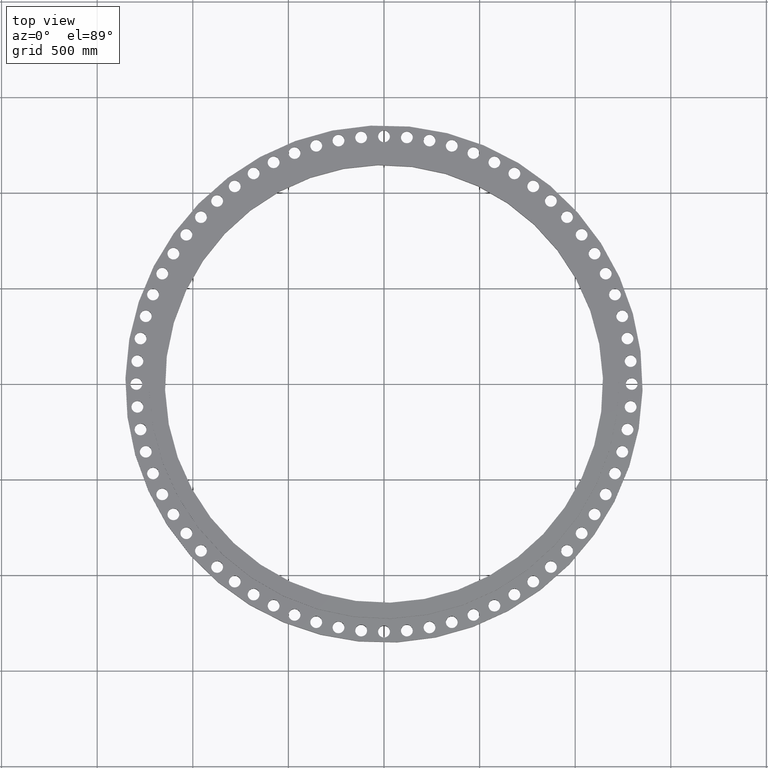
[diagram: clean part render]
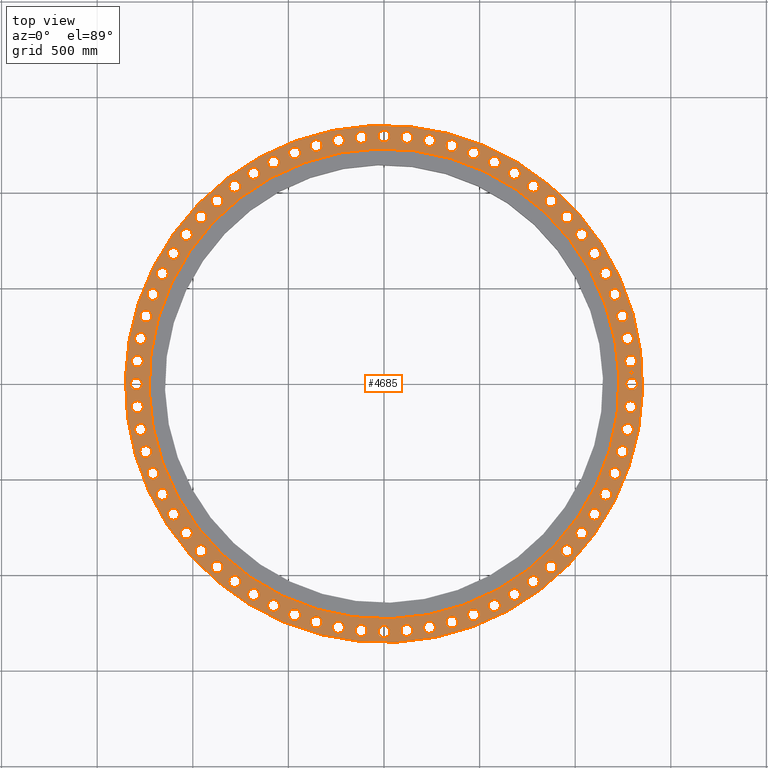
[diagram: same view with one face highlighted and labeled with its STEP entity id]
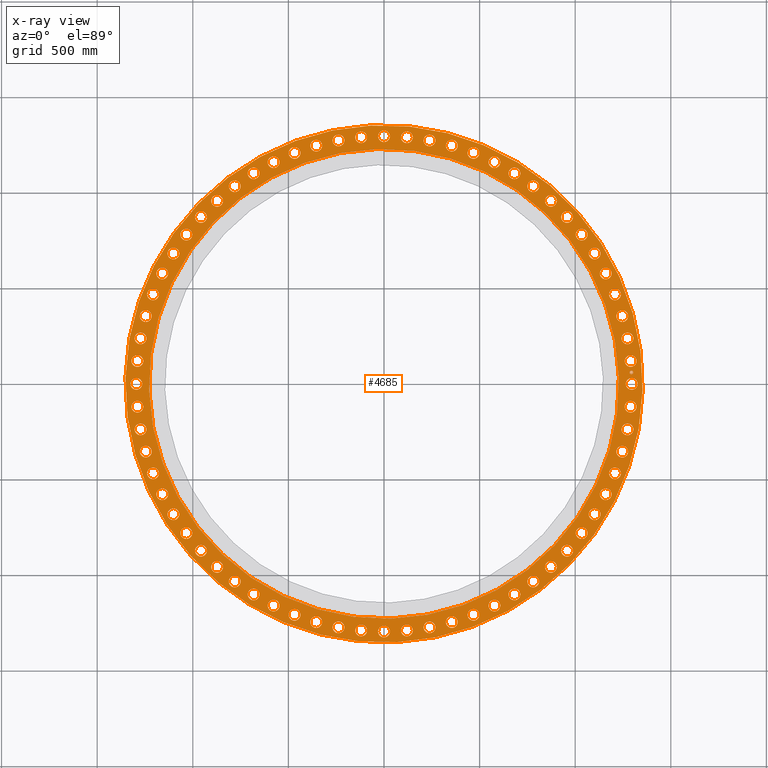
[diagram: x-ray of the same camera — body ghosted, the highlighted face saturated]
A machine part, top view. The second image highlights one B-rep face of the part: STEP entity #4685.
The next image is the same camera in x-ray: the body ghosted, the highlighted face saturated — about 0% of this face is hidden behind the body in this view.
In plain terms, the highlighted planar face has unit normal (0, 0, 1).
Its self-contained STEP definition (entity closure, byte-faithful):
#65=AXIS2_PLACEMENT_3D('Circle Axis2P3D',#63,#64,$) ;
#82=AXIS2_PLACEMENT_3D('Circle Axis2P3D',#80,#81,$) ;
#108=AXIS2_PLACEMENT_3D('Circle Axis2P3D',#106,#107,$) ;
#134=AXIS2_PLACEMENT_3D('Circle Axis2P3D',#132,#133,$) ;
#255=AXIS2_PLACEMENT_3D('Circle Axis2P3D',#253,#254,$) ;
#267=AXIS2_PLACEMENT_3D('Circle Axis2P3D',#265,#266,$) ;
#1522=AXIS2_PLACEMENT_3D('Circle Axis2P3D',#1520,#1521,$) ;
#1534=AXIS2_PLACEMENT_3D('Circle Axis2P3D',#1532,#1533,$) ;
#1565=AXIS2_PLACEMENT_3D('Circle Axis2P3D',#1563,#1564,$) ;
#1577=AXIS2_PLACEMENT_3D('Circle Axis2P3D',#1575,#1576,$) ;
#1608=AXIS2_PLACEMENT_3D('Circle Axis2P3D',#1606,#1607,$) ;
#1620=AXIS2_PLACEMENT_3D('Circle Axis2P3D',#1618,#1619,$) ;
#1651=AXIS2_PLACEMENT_3D('Circle Axis2P3D',#1649,#1650,$) ;
#1663=AXIS2_PLACEMENT_3D('Circle Axis2P3D',#1661,#1662,$) ;
#1694=AXIS2_PLACEMENT_3D('Circle Axis2P3D',#1692,#1693,$) ;
#1706=AXIS2_PLACEMENT_3D('Circle Axis2P3D',#1704,#1705,$) ;
#1737=AXIS2_PLACEMENT_3D('Circle Axis2P3D',#1735,#1736,$) ;
#1749=AXIS2_PLACEMENT_3D('Circle Axis2P3D',#1747,#1748,$) ;
#1780=AXIS2_PLACEMENT_3D('Circle Axis2P3D',#1778,#1779,$) ;
#1792=AXIS2_PLACEMENT_3D('Circle Axis2P3D',#1790,#1791,$) ;
#1823=AXIS2_PLACEMENT_3D('Circle Axis2P3D',#1821,#1822,$) ;
#1835=AXIS2_PLACEMENT_3D('Circle Axis2P3D',#1833,#1834,$) ;
#1866=AXIS2_PLACEMENT_3D('Circle Axis2P3D',#1864,#1865,$) ;
#1878=AXIS2_PLACEMENT_3D('Circle Axis2P3D',#1876,#1877,$) ;
#1909=AXIS2_PLACEMENT_3D('Circle Axis2P3D',#1907,#1908,$) ;
#1921=AXIS2_PLACEMENT_3D('Circle Axis2P3D',#1919,#1920,$) ;
#1952=AXIS2_PLACEMENT_3D('Circle Axis2P3D',#1950,#1951,$) ;
#1964=AXIS2_PLACEMENT_3D('Circle Axis2P3D',#1962,#1963,$) ;
#1995=AXIS2_PLACEMENT_3D('Circle Axis2P3D',#1993,#1994,$) ;
#2007=AXIS2_PLACEMENT_3D('Circle Axis2P3D',#2005,#2006,$) ;
#2038=AXIS2_PLACEMENT_3D('Circle Axis2P3D',#2036,#2037,$) ;
#2050=AXIS2_PLACEMENT_3D('Circle Axis2P3D',#2048,#2049,$) ;
#2081=AXIS2_PLACEMENT_3D('Circle Axis2P3D',#2079,#2080,$) ;
#2093=AXIS2_PLACEMENT_3D('Circle Axis2P3D',#2091,#2092,$) ;
#2124=AXIS2_PLACEMENT_3D('Circle Axis2P3D',#2122,#2123,$) ;
#2136=AXIS2_PLACEMENT_3D('Circle Axis2P3D',#2134,#2135,$) ;
#2167=AXIS2_PLACEMENT_3D('Circle Axis2P3D',#2165,#2166,$) ;
#2179=AXIS2_PLACEMENT_3D('Circle Axis2P3D',#2177,#2178,$) ;
#2210=AXIS2_PLACEMENT_3D('Circle Axis2P3D',#2208,#2209,$) ;
#2222=AXIS2_PLACEMENT_3D('Circle Axis2P3D',#2220,#2221,$) ;
#2253=AXIS2_PLACEMENT_3D('Circle Axis2P3D',#2251,#2252,$) ;
#2265=AXIS2_PLACEMENT_3D('Circle Axis2P3D',#2263,#2264,$) ;
#2296=AXIS2_PLACEMENT_3D('Circle Axis2P3D',#2294,#2295,$) ;
#2308=AXIS2_PLACEMENT_3D('Circle Axis2P3D',#2306,#2307,$) ;
#2339=AXIS2_PLACEMENT_3D('Circle Axis2P3D',#2337,#2338,$) ;
#2351=AXIS2_PLACEMENT_3D('Circle Axis2P3D',#2349,#2350,$) ;
#2382=AXIS2_PLACEMENT_3D('Circle Axis2P3D',#2380,#2381,$) ;
#2394=AXIS2_PLACEMENT_3D('Circle Axis2P3D',#2392,#2393,$) ;
#2425=AXIS2_PLACEMENT_3D('Circle Axis2P3D',#2423,#2424,$) ;
#2437=AXIS2_PLACEMENT_3D('Circle Axis2P3D',#2435,#2436,$) ;
#2468=AXIS2_PLACEMENT_3D('Circle Axis2P3D',#2466,#2467,$) ;
#2480=AXIS2_PLACEMENT_3D('Circle Axis2P3D',#2478,#2479,$) ;
#2511=AXIS2_PLACEMENT_3D('Circle Axis2P3D',#2509,#2510,$) ;
#2523=AXIS2_PLACEMENT_3D('Circle Axis2P3D',#2521,#2522,$) ;
#2554=AXIS2_PLACEMENT_3D('Circle Axis2P3D',#2552,#2553,$) ;
#2566=AXIS2_PLACEMENT_3D('Circle Axis2P3D',#2564,#2565,$) ;
#2597=AXIS2_PLACEMENT_3D('Circle Axis2P3D',#2595,#2596,$) ;
#2609=AXIS2_PLACEMENT_3D('Circle Axis2P3D',#2607,#2608,$) ;
#2640=AXIS2_PLACEMENT_3D('Circle Axis2P3D',#2638,#2639,$) ;
#2652=AXIS2_PLACEMENT_3D('Circle Axis2P3D',#2650,#2651,$) ;
#2683=AXIS2_PLACEMENT_3D('Circle Axis2P3D',#2681,#2682,$) ;
#2695=AXIS2_PLACEMENT_3D('Circle Axis2P3D',#2693,#2694,$) ;
#2726=AXIS2_PLACEMENT_3D('Circle Axis2P3D',#2724,#2725,$) ;
#2738=AXIS2_PLACEMENT_3D('Circle Axis2P3D',#2736,#2737,$) ;
#2769=AXIS2_PLACEMENT_3D('Circle Axis2P3D',#2767,#2768,$) ;
#2781=AXIS2_PLACEMENT_3D('Circle Axis2P3D',#2779,#2780,$) ;
#2812=AXIS2_PLACEMENT_3D('Circle Axis2P3D',#2810,#2811,$) ;
#2824=AXIS2_PLACEMENT_3D('Circle Axis2P3D',#2822,#2823,$) ;
#2855=AXIS2_PLACEMENT_3D('Circle Axis2P3D',#2853,#2854,$) ;
#2867=AXIS2_PLACEMENT_3D('Circle Axis2P3D',#2865,#2866,$) ;
#2898=AXIS2_PLACEMENT_3D('Circle Axis2P3D',#2896,#2897,$) ;
#2910=AXIS2_PLACEMENT_3D('Circle Axis2P3D',#2908,#2909,$) ;
#2941=AXIS2_PLACEMENT_3D('Circle Axis2P3D',#2939,#2940,$) ;
#2953=AXIS2_PLACEMENT_3D('Circle Axis2P3D',#2951,#2952,$) ;
#2984=AXIS2_PLACEMENT_3D('Circle Axis2P3D',#2982,#2983,$) ;
#2996=AXIS2_PLACEMENT_3D('Circle Axis2P3D',#2994,#2995,$) ;
#3027=AXIS2_PLACEMENT_3D('Circle Axis2P3D',#3025,#3026,$) ;
#3039=AXIS2_PLACEMENT_3D('Circle Axis2P3D',#3037,#3038,$) ;
#3070=AXIS2_PLACEMENT_3D('Circle Axis2P3D',#3068,#3069,$) ;
#3082=AXIS2_PLACEMENT_3D('Circle Axis2P3D',#3080,#3081,$) ;
#3113=AXIS2_PLACEMENT_3D('Circle Axis2P3D',#3111,#3112,$) ;
#3125=AXIS2_PLACEMENT_3D('Circle Axis2P3D',#3123,#3124,$) ;
#3156=AXIS2_PLACEMENT_3D('Circle Axis2P3D',#3154,#3155,$) ;
#3168=AXIS2_PLACEMENT_3D('Circle Axis2P3D',#3166,#3167,$) ;
#3199=AXIS2_PLACEMENT_3D('Circle Axis2P3D',#3197,#3198,$) ;
#3211=AXIS2_PLACEMENT_3D('Circle Axis2P3D',#3209,#3210,$) ;
#3242=AXIS2_PLACEMENT_3D('Circle Axis2P3D',#3240,#3241,$) ;
#3254=AXIS2_PLACEMENT_3D('Circle Axis2P3D',#3252,#3253,$) ;
#3285=AXIS2_PLACEMENT_3D('Circle Axis2P3D',#3283,#3284,$) ;
#3297=AXIS2_PLACEMENT_3D('Circle Axis2P3D',#3295,#3296,$) ;
#3328=AXIS2_PLACEMENT_3D('Circle Axis2P3D',#3326,#3327,$) ;
#3340=AXIS2_PLACEMENT_3D('Circle Axis2P3D',#3338,#3339,$) ;
#3371=AXIS2_PLACEMENT_3D('Circle Axis2P3D',#3369,#3370,$) ;
#3383=AXIS2_PLACEMENT_3D('Circle Axis2P3D',#3381,#3382,$) ;
#3414=AXIS2_PLACEMENT_3D('Circle Axis2P3D',#3412,#3413,$) ;
#3426=AXIS2_PLACEMENT_3D('Circle Axis2P3D',#3424,#3425,$) ;
#3457=AXIS2_PLACEMENT_3D('Circle Axis2P3D',#3455,#3456,$) ;
#3469=AXIS2_PLACEMENT_3D('Circle Axis2P3D',#3467,#3468,$) ;
#3500=AXIS2_PLACEMENT_3D('Circle Axis2P3D',#3498,#3499,$) ;
#3512=AXIS2_PLACEMENT_3D('Circle Axis2P3D',#3510,#3511,$) ;
#3543=AXIS2_PLACEMENT_3D('Circle Axis2P3D',#3541,#3542,$) ;
#3555=AXIS2_PLACEMENT_3D('Circle Axis2P3D',#3553,#3554,$) ;
#3586=AXIS2_PLACEMENT_3D('Circle Axis2P3D',#3584,#3585,$) ;
#3598=AXIS2_PLACEMENT_3D('Circle Axis2P3D',#3596,#3597,$) ;
#3629=AXIS2_PLACEMENT_3D('Circle Axis2P3D',#3627,#3628,$) ;
#3641=AXIS2_PLACEMENT_3D('Circle Axis2P3D',#3639,#3640,$) ;
#3672=AXIS2_PLACEMENT_3D('Circle Axis2P3D',#3670,#3671,$) ;
#3684=AXIS2_PLACEMENT_3D('Circle Axis2P3D',#3682,#3683,$) ;
#3715=AXIS2_PLACEMENT_3D('Circle Axis2P3D',#3713,#3714,$) ;
#3727=AXIS2_PLACEMENT_3D('Circle Axis2P3D',#3725,#3726,$) ;
#3758=AXIS2_PLACEMENT_3D('Circle Axis2P3D',#3756,#3757,$) ;
#3770=AXIS2_PLACEMENT_3D('Circle Axis2P3D',#3768,#3769,$) ;
#3801=AXIS2_PLACEMENT_3D('Circle Axis2P3D',#3799,#3800,$) ;
#3813=AXIS2_PLACEMENT_3D('Circle Axis2P3D',#3811,#3812,$) ;
#3844=AXIS2_PLACEMENT_3D('Circle Axis2P3D',#3842,#3843,$) ;
#3856=AXIS2_PLACEMENT_3D('Circle Axis2P3D',#3854,#3855,$) ;
#3887=AXIS2_PLACEMENT_3D('Circle Axis2P3D',#3885,#3886,$) ;
#3899=AXIS2_PLACEMENT_3D('Circle Axis2P3D',#3897,#3898,$) ;
#3930=AXIS2_PLACEMENT_3D('Circle Axis2P3D',#3928,#3929,$) ;
#3942=AXIS2_PLACEMENT_3D('Circle Axis2P3D',#3940,#3941,$) ;
#3973=AXIS2_PLACEMENT_3D('Circle Axis2P3D',#3971,#3972,$) ;
#3985=AXIS2_PLACEMENT_3D('Circle Axis2P3D',#3983,#3984,$) ;
#4016=AXIS2_PLACEMENT_3D('Circle Axis2P3D',#4014,#4015,$) ;
#4028=AXIS2_PLACEMENT_3D('Circle Axis2P3D',#4026,#4027,$) ;
#4059=AXIS2_PLACEMENT_3D('Circle Axis2P3D',#4057,#4058,$) ;
#4071=AXIS2_PLACEMENT_3D('Circle Axis2P3D',#4069,#4070,$) ;
#4102=AXIS2_PLACEMENT_3D('Circle Axis2P3D',#4100,#4101,$) ;
#4114=AXIS2_PLACEMENT_3D('Circle Axis2P3D',#4112,#4113,$) ;
#4145=AXIS2_PLACEMENT_3D('Circle Axis2P3D',#4143,#4144,$) ;
#4157=AXIS2_PLACEMENT_3D('Circle Axis2P3D',#4155,#4156,$) ;
#4188=AXIS2_PLACEMENT_3D('Circle Axis2P3D',#4186,#4187,$) ;
#4200=AXIS2_PLACEMENT_3D('Circle Axis2P3D',#4198,#4199,$) ;
#4231=AXIS2_PLACEMENT_3D('Circle Axis2P3D',#4229,#4230,$) ;
#4243=AXIS2_PLACEMENT_3D('Circle Axis2P3D',#4241,#4242,$) ;
#4274=AXIS2_PLACEMENT_3D('Circle Axis2P3D',#4272,#4273,$) ;
#4286=AXIS2_PLACEMENT_3D('Circle Axis2P3D',#4284,#4285,$) ;
#4317=AXIS2_PLACEMENT_3D('Circle Axis2P3D',#4315,#4316,$) ;
#4329=AXIS2_PLACEMENT_3D('Circle Axis2P3D',#4327,#4328,$) ;
#4360=AXIS2_PLACEMENT_3D('Circle Axis2P3D',#4358,#4359,$) ;
#4372=AXIS2_PLACEMENT_3D('Circle Axis2P3D',#4370,#4371,$) ;
#4385=AXIS2_PLACEMENT_3D('Plane Axis2P3D',#4382,#4383,#4384) ;
#4669=AXIS2_PLACEMENT_3D('Circle Axis2P3D',#4667,#4668,$) ;
#4678=AXIS2_PLACEMENT_3D('Circle Axis2P3D',#4676,#4677,$) ;
#46=CARTESIAN_POINT('Vertex',(49.9302268573,0.584419731561,4.25000000002)) ;
#60=CARTESIAN_POINT('Vertex',(52.0697731432,-0.584419731561,4.25000000002)) ;
#63=CARTESIAN_POINT('Axis2P3D Location',(51.0000000002,0.,4.25000000002)) ;
#80=CARTESIAN_POINT('Axis2P3D Location',(51.0000000002,0.,4.25000000002)) ;
#103=CARTESIAN_POINT('Vertex',(-25.5294099308,46.7312714208,4.25000000002)) ;
#106=CARTESIAN_POINT('Axis2P3D Location',(0.,0.,4.25000000002)) ;
#110=CARTESIAN_POINT('Vertex',(25.5294099308,-46.7312714208,4.25000000002)) ;
#132=CARTESIAN_POINT('Axis2P3D Location',(0.,0.,4.25000000002)) ;
#243=CARTESIAN_POINT('Vertex',(-23.1922104301,42.4530564316,4.25000000002)) ;
#250=CARTESIAN_POINT('Vertex',(23.1922104301,-42.4530564316,4.25000000002)) ;
#253=CARTESIAN_POINT('Axis2P3D Location',(0.,0.,4.25000000002)) ;
#265=CARTESIAN_POINT('Axis2P3D Location',(0.,0.,4.25000000002)) ;
#1510=CARTESIAN_POINT('Vertex',(49.6633098621,5.18890681977,4.25000000002)) ;
#1517=CARTESIAN_POINT('Vertex',(51.9015761204,4.22246584553,4.25000000002)) ;
#1520=CARTESIAN_POINT('Axis2P3D Location',(50.7824429912,4.70568633265,4.25000000002)) ;
#1532=CARTESIAN_POINT('Axis2P3D Location',(50.7824429912,4.70568633265,4.25000000002)) ;
#1553=CARTESIAN_POINT('Vertex',(48.9726830179,9.74912398454,4.25000000002)) ;
#1560=CARTESIAN_POINT('Vertex',(51.2905731502,8.99332683282,4.25000000002)) ;
#1563=CARTESIAN_POINT('Axis2P3D Location',(50.1316280841,9.37122540868,4.25000000002)) ;
#1575=CARTESIAN_POINT('Axis2P3D Location',(50.1316280841,9.37122540868,4.25000000002)) ;
#1596=CARTESIAN_POINT('Vertex',(47.8642385095,14.2261650609,4.25000000002)) ;
#1603=CARTESIAN_POINT('Vertex',(50.2419770945,13.6874599265,4.25000000002)) ;
#1606=CARTESIAN_POINT('Axis2P3D Location',(49.053107802,13.9568124937,4.25000000002)) ;
#1618=CARTESIAN_POINT('Axis2P3D Location',(49.053107802,13.9568124937,4.25000000002)) ;
#1639=CARTESIAN_POINT('Vertex',(46.3474331947,18.581833513,4.25000000002)) ;
#1646=CARTESIAN_POINT('Vertex',(48.764734205,18.2648164382,4.25000000002)) ;
#1649=CARTESIAN_POINT('Axis2P3D Location',(47.5560836998,18.4233249756,4.25000000002)) ;
#1661=CARTESIAN_POINT('Axis2P3D Location',(47.5560836998,18.4233249756,4.25000000002)) ;
#1682=CARTESIAN_POINT('Vertex',(44.4352079214,22.7789683133,4.25000000002)) ;
#1689=CARTESIAN_POINT('Vertex',(46.8714477972,22.686343976,4.25000000002)) ;
#1692=CARTESIAN_POINT('Axis2P3D Location',(45.6533278593,22.7326561447,4.25000000002)) ;
#1704=CARTESIAN_POINT('Axis2P3D Location',(45.6533278593,22.7326561447,4.25000000002)) ;
#1725=CARTESIAN_POINT('Vertex',(42.1438771216,26.7817609877,4.25000000002)) ;
#1732=CARTESIAN_POINT('Vertex',(44.5782707232,26.9143196261,4.25000000002)) ;
#1735=CARTESIAN_POINT('Axis2P3D Location',(43.3610739224,26.8480403069,4.25000000002)) ;
#1747=CARTESIAN_POINT('Axis2P3D Location',(43.3610739224,26.8480403069,4.25000000002)) ;
#1768=CARTESIAN_POINT('Vertex',(39.4929896217,30.5560611202,4.25000000002)) ;
#1775=CARTESIAN_POINT('Vertex',(41.9047675612,30.9126717907,4.25000000002)) ;
#1778=CARTESIAN_POINT('Axis2P3D Location',(40.6988785915,30.7343664555,4.25000000002)) ;
#1790=CARTESIAN_POINT('Axis2P3D Location',(40.6988785915,30.7343664555,4.25000000002)) ;
#1811=CARTESIAN_POINT('Vertex',(36.5051618591,34.069667713,4.25000000002)) ;
#1818=CARTESIAN_POINT('Vertex',(38.8737476977,34.6472879392,4.25000000002)) ;
#1821=CARTESIAN_POINT('Axis2P3D Location',(37.6894547784,34.3584778261,4.25000000002)) ;
#1833=CARTESIAN_POINT('Axis2P3D Location',(37.6894547784,34.3584778261,4.25000000002)) ;
#1854=CARTESIAN_POINT('Vertex',(33.205884927,37.2926039136,4.25000000002)) ;
#1861=CARTESIAN_POINT('Vertex',(35.5110707252,38.0863056432,4.25000000002)) ;
#1864=CARTESIAN_POINT('Axis2P3D Location',(34.3584778261,37.6894547784,4.25000000002)) ;
#1876=CARTESIAN_POINT('Axis2P3D Location',(34.3584778261,37.6894547784,4.25000000002)) ;
#1897=CARTESIAN_POINT('Vertex',(29.6233070927,40.1973727665,4.25000000002)) ;
#1904=CARTESIAN_POINT('Vertex',(31.8454258182,41.2003844164,4.25000000002)) ;
#1907=CARTESIAN_POINT('Axis2P3D Location',(30.7343664555,40.6988785915,4.25000000002)) ;
#1919=CARTESIAN_POINT('Axis2P3D Location',(30.7343664555,40.6988785915,4.25000000002)) ;
#1940=CARTESIAN_POINT('Vertex',(25.7879936472,42.7591918082,4.25000000002)) ;
#1947=CARTESIAN_POINT('Vertex',(27.9080869665,43.9629560365,4.25000000002)) ;
#1950=CARTESIAN_POINT('Axis2P3D Location',(26.8480403069,43.3610739224,4.25000000002)) ;
#1962=CARTESIAN_POINT('Axis2P3D Location',(26.8480403069,43.3610739224,4.25000000002)) ;
#1983=CARTESIAN_POINT('Vertex',(21.7326661325,44.9562045019,4.25000000002)) ;
#1990=CARTESIAN_POINT('Vertex',(23.7326461569,46.3504512167,4.25000000002)) ;
#1993=CARTESIAN_POINT('Axis2P3D Location',(22.7326561447,45.6533278593,4.25000000002)) ;
#2005=CARTESIAN_POINT('Axis2P3D Location',(22.7326561447,45.6533278593,4.25000000002)) ;
#2026=CARTESIAN_POINT('Vertex',(17.491923173,46.7696667098,4.25000000002)) ;
#2033=CARTESIAN_POINT('Vertex',(19.3547267782,48.3425006898,4.25000000002)) ;
#2036=CARTESIAN_POINT('Axis2P3D Location',(18.4233249756,47.5560836998,4.25000000002)) ;
#2048=CARTESIAN_POINT('Axis2P3D Location',(18.4233249756,47.5560836998,4.25000000002)) ;
#2069=CARTESIAN_POINT('Vertex',(13.1019452925,48.1841066119,4.25000000002)) ;
#2076=CARTESIAN_POINT('Vertex',(14.8116796949,49.9221089921,4.25000000002)) ;
#2079=CARTESIAN_POINT('Axis2P3D Location',(13.9568124937,49.053107802,4.25000000002)) ;
#2091=CARTESIAN_POINT('Axis2P3D Location',(13.9568124937,49.053107802,4.25000000002)) ;
#2112=CARTESIAN_POINT('Vertex',(8.60018623444,49.1874567057,4.25000000002)) ;
#2119=CARTESIAN_POINT('Vertex',(10.1422645829,51.0757994625,4.25000000002)) ;
#2122=CARTESIAN_POINT('Axis2P3D Location',(9.37122540868,50.1316280841,4.25000000002)) ;
#2134=CARTESIAN_POINT('Axis2P3D Location',(9.37122540868,50.1316280841,4.25000000002)) ;
#2155=CARTESIAN_POINT('Vertex',(4.02505341973,49.7711567618,4.25000000002)) ;
#2162=CARTESIAN_POINT('Vertex',(5.38631924556,51.7937292207,4.25000000002)) ;
#2165=CARTESIAN_POINT('Axis2P3D Location',(4.70568633265,50.7824429912,4.25000000002)) ;
#2177=CARTESIAN_POINT('Axis2P3D Location',(4.70568633265,50.7824429912,4.25000000002)) ;
#2198=CARTESIAN_POINT('Vertex',(-0.584419731561,49.9302268573,4.25000000002)) ;
#2205=CARTESIAN_POINT('Vertex',(0.584419731561,52.0697731432,4.25000000002)) ;
#2208=CARTESIAN_POINT('Axis2P3D Location',(-5.8288701678E-015,51.0000000002,4.25000000002)) ;
#2220=CARTESIAN_POINT('Axis2P3D Location',(-5.8288701678E-015,51.0000000002,4.25000000002)) ;
#2241=CARTESIAN_POINT('Vertex',(-5.18890681977,49.6633098621,4.25000000002)) ;
#2248=CARTESIAN_POINT('Vertex',(-4.22246584553,51.9015761204,4.25000000002)) ;
#2251=CARTESIAN_POINT('Axis2P3D Location',(-4.70568633265,50.7824429912,4.25000000002)) ;
#2263=CARTESIAN_POINT('Axis2P3D Location',(-4.70568633265,50.7824429912,4.25000000002)) ;
#2284=CARTESIAN_POINT('Vertex',(-9.74912398454,48.9726830179,4.25000000002)) ;
#2291=CARTESIAN_POINT('Vertex',(-8.99332683282,51.2905731502,4.25000000002)) ;
#2294=CARTESIAN_POINT('Axis2P3D Location',(-9.37122540868,50.1316280841,4.25000000002)) ;
#2306=CARTESIAN_POINT('Axis2P3D Location',(-9.37122540868,50.1316280841,4.25000000002)) ;
#2327=CARTESIAN_POINT('Vertex',(-14.2261650609,47.8642385095,4.25000000002)) ;
#2334=CARTESIAN_POINT('Vertex',(-13.6874599265,50.2419770945,4.25000000002)) ;
#2337=CARTESIAN_POINT('Axis2P3D Location',(-13.9568124937,49.053107802,4.25000000002)) ;
#2349=CARTESIAN_POINT('Axis2P3D Location',(-13.9568124937,49.053107802,4.25000000002)) ;
#2370=CARTESIAN_POINT('Vertex',(-18.581833513,46.3474331947,4.25000000002)) ;
#2377=CARTESIAN_POINT('Vertex',(-18.2648164382,48.764734205,4.25000000002)) ;
#2380=CARTESIAN_POINT('Axis2P3D Location',(-18.4233249756,47.5560836998,4.25000000002)) ;
#2392=CARTESIAN_POINT('Axis2P3D Location',(-18.4233249756,47.5560836998,4.25000000002)) ;
#2413=CARTESIAN_POINT('Vertex',(-22.7789683133,44.4352079214,4.25000000002)) ;
#2420=CARTESIAN_POINT('Vertex',(-22.686343976,46.8714477972,4.25000000002)) ;
#2423=CARTESIAN_POINT('Axis2P3D Location',(-22.7326561447,45.6533278593,4.25000000002)) ;
#2435=CARTESIAN_POINT('Axis2P3D Location',(-22.7326561447,45.6533278593,4.25000000002)) ;
#2456=CARTESIAN_POINT('Vertex',(-26.7817609877,42.1438771216,4.25000000002)) ;
#2463=CARTESIAN_POINT('Vertex',(-26.9143196261,44.5782707232,4.25000000002)) ;
#2466=CARTESIAN_POINT('Axis2P3D Location',(-26.8480403069,43.3610739224,4.25000000002)) ;
#2478=CARTESIAN_POINT('Axis2P3D Location',(-26.8480403069,43.3610739224,4.25000000002)) ;
#2499=CARTESIAN_POINT('Vertex',(-30.5560611202,39.4929896217,4.25000000002)) ;
#2506=CARTESIAN_POINT('Vertex',(-30.9126717907,41.9047675612,4.25000000002)) ;
#2509=CARTESIAN_POINT('Axis2P3D Location',(-30.7343664555,40.6988785915,4.25000000002)) ;
#2521=CARTESIAN_POINT('Axis2P3D Location',(-30.7343664555,40.6988785915,4.25000000002)) ;
#2542=CARTESIAN_POINT('Vertex',(-34.069667713,36.5051618591,4.25000000002)) ;
#2549=CARTESIAN_POINT('Vertex',(-34.6472879392,38.8737476977,4.25000000002)) ;
#2552=CARTESIAN_POINT('Axis2P3D Location',(-34.3584778261,37.6894547784,4.25000000002)) ;
#2564=CARTESIAN_POINT('Axis2P3D Location',(-34.3584778261,37.6894547784,4.25000000002)) ;
#2585=CARTESIAN_POINT('Vertex',(-37.2926039136,33.205884927,4.25000000002)) ;
#2592=CARTESIAN_POINT('Vertex',(-38.0863056432,35.5110707252,4.25000000002)) ;
#2595=CARTESIAN_POINT('Axis2P3D Location',(-37.6894547784,34.3584778261,4.25000000002)) ;
#2607=CARTESIAN_POINT('Axis2P3D Location',(-37.6894547784,34.3584778261,4.25000000002)) ;
#2628=CARTESIAN_POINT('Vertex',(-40.1973727665,29.6233070927,4.25000000002)) ;
#2635=CARTESIAN_POINT('Vertex',(-41.2003844164,31.8454258182,4.25000000002)) ;
#2638=CARTESIAN_POINT('Axis2P3D Location',(-40.6988785915,30.7343664555,4.25000000002)) ;
#2650=CARTESIAN_POINT('Axis2P3D Location',(-40.6988785915,30.7343664555,4.25000000002)) ;
#2671=CARTESIAN_POINT('Vertex',(-42.7591918082,25.7879936472,4.25000000002)) ;
#2678=CARTESIAN_POINT('Vertex',(-43.9629560365,27.9080869665,4.25000000002)) ;
#2681=CARTESIAN_POINT('Axis2P3D Location',(-43.3610739224,26.8480403069,4.25000000002)) ;
#2693=CARTESIAN_POINT('Axis2P3D Location',(-43.3610739224,26.8480403069,4.25000000002)) ;
#2714=CARTESIAN_POINT('Vertex',(-44.9562045019,21.7326661325,4.25000000002)) ;
#2721=CARTESIAN_POINT('Vertex',(-46.3504512167,23.7326461569,4.25000000002)) ;
#2724=CARTESIAN_POINT('Axis2P3D Location',(-45.6533278593,22.7326561447,4.25000000002)) ;
#2736=CARTESIAN_POINT('Axis2P3D Location',(-45.6533278593,22.7326561447,4.25000000002)) ;
#2757=CARTESIAN_POINT('Vertex',(-46.7696667098,17.491923173,4.25000000002)) ;
#2764=CARTESIAN_POINT('Vertex',(-48.3425006898,19.3547267782,4.25000000002)) ;
#2767=CARTESIAN_POINT('Axis2P3D Location',(-47.5560836998,18.4233249756,4.25000000002)) ;
#2779=CARTESIAN_POINT('Axis2P3D Location',(-47.5560836998,18.4233249756,4.25000000002)) ;
#2800=CARTESIAN_POINT('Vertex',(-48.1841066119,13.1019452925,4.25000000002)) ;
#2807=CARTESIAN_POINT('Vertex',(-49.9221089921,14.8116796949,4.25000000002)) ;
#2810=CARTESIAN_POINT('Axis2P3D Location',(-49.053107802,13.9568124937,4.25000000002)) ;
#2822=CARTESIAN_POINT('Axis2P3D Location',(-49.053107802,13.9568124937,4.25000000002)) ;
#2843=CARTESIAN_POINT('Vertex',(-49.1874567057,8.60018623444,4.25000000002)) ;
#2850=CARTESIAN_POINT('Vertex',(-51.0757994625,10.1422645829,4.25000000002)) ;
#2853=CARTESIAN_POINT('Axis2P3D Location',(-50.1316280841,9.37122540868,4.25000000002)) ;
#2865=CARTESIAN_POINT('Axis2P3D Location',(-50.1316280841,9.37122540868,4.25000000002)) ;
#2886=CARTESIAN_POINT('Vertex',(-49.7711567618,4.02505341973,4.25000000002)) ;
#2893=CARTESIAN_POINT('Vertex',(-51.7937292207,5.38631924556,4.25000000002)) ;
#2896=CARTESIAN_POINT('Axis2P3D Location',(-50.7824429912,4.70568633265,4.25000000002)) ;
#2908=CARTESIAN_POINT('Axis2P3D Location',(-50.7824429912,4.70568633265,4.25000000002)) ;
#2929=CARTESIAN_POINT('Vertex',(-49.9302268573,-0.584419731561,4.25000000002)) ;
#2936=CARTESIAN_POINT('Vertex',(-52.0697731432,0.584419731561,4.25000000002)) ;
#2939=CARTESIAN_POINT('Axis2P3D Location',(-51.0000000002,6.24569867568E-015,4.25000000002)) ;
#2951=CARTESIAN_POINT('Axis2P3D Location',(-51.0000000002,6.24569867568E-015,4.25000000002)) ;
#2972=CARTESIAN_POINT('Vertex',(-49.6633098621,-5.18890681977,4.25000000002)) ;
#2979=CARTESIAN_POINT('Vertex',(-51.9015761204,-4.22246584553,4.25000000002)) ;
#2982=CARTESIAN_POINT('Axis2P3D Location',(-50.7824429912,-4.70568633265,4.25000000002)) ;
#2994=CARTESIAN_POINT('Axis2P3D Location',(-50.7824429912,-4.70568633265,4.25000000002)) ;
#3015=CARTESIAN_POINT('Vertex',(-48.9726830179,-9.74912398454,4.25000000002)) ;
#3022=CARTESIAN_POINT('Vertex',(-51.2905731502,-8.99332683282,4.25000000002)) ;
#3025=CARTESIAN_POINT('Axis2P3D Location',(-50.1316280841,-9.37122540868,4.25000000002)) ;
#3037=CARTESIAN_POINT('Axis2P3D Location',(-50.1316280841,-9.37122540868,4.25000000002)) ;
#3058=CARTESIAN_POINT('Vertex',(-47.8642385095,-14.2261650609,4.25000000002)) ;
#3065=CARTESIAN_POINT('Vertex',(-50.2419770945,-13.6874599265,4.25000000002)) ;
#3068=CARTESIAN_POINT('Axis2P3D Location',(-49.053107802,-13.9568124937,4.25000000002)) ;
#3080=CARTESIAN_POINT('Axis2P3D Location',(-49.053107802,-13.9568124937,4.25000000002)) ;
#3101=CARTESIAN_POINT('Vertex',(-46.3474331947,-18.581833513,4.25000000002)) ;
#3108=CARTESIAN_POINT('Vertex',(-48.764734205,-18.2648164382,4.25000000002)) ;
#3111=CARTESIAN_POINT('Axis2P3D Location',(-47.5560836998,-18.4233249756,4.25000000002)) ;
#3123=CARTESIAN_POINT('Axis2P3D Location',(-47.5560836998,-18.4233249756,4.25000000002)) ;
#3144=CARTESIAN_POINT('Vertex',(-44.4352079214,-22.7789683133,4.25000000002)) ;
#3151=CARTESIAN_POINT('Vertex',(-46.8714477972,-22.686343976,4.25000000002)) ;
#3154=CARTESIAN_POINT('Axis2P3D Location',(-45.6533278593,-22.7326561447,4.25000000002)) ;
#3166=CARTESIAN_POINT('Axis2P3D Location',(-45.6533278593,-22.7326561447,4.25000000002)) ;
#3187=CARTESIAN_POINT('Vertex',(-42.1438771216,-26.7817609877,4.25000000002)) ;
#3194=CARTESIAN_POINT('Vertex',(-44.5782707232,-26.9143196261,4.25000000002)) ;
#3197=CARTESIAN_POINT('Axis2P3D Location',(-43.3610739224,-26.8480403069,4.25000000002)) ;
#3209=CARTESIAN_POINT('Axis2P3D Location',(-43.3610739224,-26.8480403069,4.25000000002)) ;
#3230=CARTESIAN_POINT('Vertex',(-39.4929896217,-30.5560611202,4.25000000002)) ;
#3237=CARTESIAN_POINT('Vertex',(-41.9047675612,-30.9126717907,4.25000000002)) ;
#3240=CARTESIAN_POINT('Axis2P3D Location',(-40.6988785915,-30.7343664555,4.25000000002)) ;
#3252=CARTESIAN_POINT('Axis2P3D Location',(-40.6988785915,-30.7343664555,4.25000000002)) ;
#3273=CARTESIAN_POINT('Vertex',(-36.5051618591,-34.069667713,4.25000000002)) ;
#3280=CARTESIAN_POINT('Vertex',(-38.8737476977,-34.6472879392,4.25000000002)) ;
#3283=CARTESIAN_POINT('Axis2P3D Location',(-37.6894547784,-34.3584778261,4.25000000002)) ;
#3295=CARTESIAN_POINT('Axis2P3D Location',(-37.6894547784,-34.3584778261,4.25000000002)) ;
#3316=CARTESIAN_POINT('Vertex',(-33.205884927,-37.2926039136,4.25000000002)) ;
#3323=CARTESIAN_POINT('Vertex',(-35.5110707252,-38.0863056432,4.25000000002)) ;
#3326=CARTESIAN_POINT('Axis2P3D Location',(-34.3584778261,-37.6894547784,4.25000000002)) ;
#3338=CARTESIAN_POINT('Axis2P3D Location',(-34.3584778261,-37.6894547784,4.25000000002)) ;
#3359=CARTESIAN_POINT('Vertex',(-29.6233070927,-40.1973727665,4.25000000002)) ;
#3366=CARTESIAN_POINT('Vertex',(-31.8454258182,-41.2003844164,4.25000000002)) ;
#3369=CARTESIAN_POINT('Axis2P3D Location',(-30.7343664555,-40.6988785915,4.25000000002)) ;
#3381=CARTESIAN_POINT('Axis2P3D Location',(-30.7343664555,-40.6988785915,4.25000000002)) ;
#3402=CARTESIAN_POINT('Vertex',(-25.7879936472,-42.7591918082,4.25000000002)) ;
#3409=CARTESIAN_POINT('Vertex',(-27.9080869665,-43.9629560365,4.25000000002)) ;
#3412=CARTESIAN_POINT('Axis2P3D Location',(-26.8480403069,-43.3610739224,4.25000000002)) ;
#3424=CARTESIAN_POINT('Axis2P3D Location',(-26.8480403069,-43.3610739224,4.25000000002)) ;
#3445=CARTESIAN_POINT('Vertex',(-21.7326661325,-44.9562045019,4.25000000002)) ;
#3452=CARTESIAN_POINT('Vertex',(-23.7326461569,-46.3504512167,4.25000000002)) ;
#3455=CARTESIAN_POINT('Axis2P3D Location',(-22.7326561447,-45.6533278593,4.25000000002)) ;
#3467=CARTESIAN_POINT('Axis2P3D Location',(-22.7326561447,-45.6533278593,4.25000000002)) ;
#3488=CARTESIAN_POINT('Vertex',(-17.491923173,-46.7696667098,4.25000000002)) ;
#3495=CARTESIAN_POINT('Vertex',(-19.3547267782,-48.3425006898,4.25000000002)) ;
#3498=CARTESIAN_POINT('Axis2P3D Location',(-18.4233249756,-47.5560836998,4.25000000002)) ;
#3510=CARTESIAN_POINT('Axis2P3D Location',(-18.4233249756,-47.5560836998,4.25000000002)) ;
#3531=CARTESIAN_POINT('Vertex',(-13.1019452925,-48.1841066119,4.25000000002)) ;
#3538=CARTESIAN_POINT('Vertex',(-14.8116796949,-49.9221089921,4.25000000002)) ;
#3541=CARTESIAN_POINT('Axis2P3D Location',(-13.9568124937,-49.053107802,4.25000000002)) ;
#3553=CARTESIAN_POINT('Axis2P3D Location',(-13.9568124937,-49.053107802,4.25000000002)) ;
#3574=CARTESIAN_POINT('Vertex',(-8.60018623444,-49.1874567057,4.25000000002)) ;
#3581=CARTESIAN_POINT('Vertex',(-10.1422645829,-51.0757994625,4.25000000002)) ;
#3584=CARTESIAN_POINT('Axis2P3D Location',(-9.37122540868,-50.1316280841,4.25000000002)) ;
#3596=CARTESIAN_POINT('Axis2P3D Location',(-9.37122540868,-50.1316280841,4.25000000002)) ;
#3617=CARTESIAN_POINT('Vertex',(-4.02505341973,-49.7711567618,4.25000000002)) ;
#3624=CARTESIAN_POINT('Vertex',(-5.38631924556,-51.7937292207,4.25000000002)) ;
#3627=CARTESIAN_POINT('Axis2P3D Location',(-4.70568633265,-50.7824429912,4.25000000002)) ;
#3639=CARTESIAN_POINT('Axis2P3D Location',(-4.70568633265,-50.7824429912,4.25000000002)) ;
#3660=CARTESIAN_POINT('Vertex',(0.584419731561,-49.9302268573,4.25000000002)) ;
#3667=CARTESIAN_POINT('Vertex',(-0.584419731561,-52.0697731432,4.25000000002)) ;
#3670=CARTESIAN_POINT('Axis2P3D Location',(-9.36854801351E-015,-51.0000000002,4.25000000002)) ;
#3682=CARTESIAN_POINT('Axis2P3D Location',(-9.36854801351E-015,-51.0000000002,4.25000000002)) ;
#3703=CARTESIAN_POINT('Vertex',(5.18890681977,-49.6633098621,4.25000000002)) ;
#3710=CARTESIAN_POINT('Vertex',(4.22246584553,-51.9015761204,4.25000000002)) ;
#3713=CARTESIAN_POINT('Axis2P3D Location',(4.70568633265,-50.7824429912,4.25000000002)) ;
#3725=CARTESIAN_POINT('Axis2P3D Location',(4.70568633265,-50.7824429912,4.25000000002)) ;
#3746=CARTESIAN_POINT('Vertex',(9.74912398454,-48.9726830179,4.25000000002)) ;
#3753=CARTESIAN_POINT('Vertex',(8.99332683282,-51.2905731502,4.25000000002)) ;
#3756=CARTESIAN_POINT('Axis2P3D Location',(9.37122540868,-50.1316280841,4.25000000002)) ;
#3768=CARTESIAN_POINT('Axis2P3D Location',(9.37122540868,-50.1316280841,4.25000000002)) ;
#3789=CARTESIAN_POINT('Vertex',(14.2261650609,-47.8642385095,4.25000000002)) ;
#3796=CARTESIAN_POINT('Vertex',(13.6874599265,-50.2419770945,4.25000000002)) ;
#3799=CARTESIAN_POINT('Axis2P3D Location',(13.9568124937,-49.053107802,4.25000000002)) ;
#3811=CARTESIAN_POINT('Axis2P3D Location',(13.9568124937,-49.053107802,4.25000000002)) ;
#3832=CARTESIAN_POINT('Vertex',(18.581833513,-46.3474331947,4.25000000002)) ;
#3839=CARTESIAN_POINT('Vertex',(18.2648164382,-48.764734205,4.25000000002)) ;
#3842=CARTESIAN_POINT('Axis2P3D Location',(18.4233249756,-47.5560836998,4.25000000002)) ;
#3854=CARTESIAN_POINT('Axis2P3D Location',(18.4233249756,-47.5560836998,4.25000000002)) ;
#3875=CARTESIAN_POINT('Vertex',(22.7789683133,-44.4352079214,4.25000000002)) ;
#3882=CARTESIAN_POINT('Vertex',(22.686343976,-46.8714477972,4.25000000002)) ;
#3885=CARTESIAN_POINT('Axis2P3D Location',(22.7326561447,-45.6533278593,4.25000000002)) ;
#3897=CARTESIAN_POINT('Axis2P3D Location',(22.7326561447,-45.6533278593,4.25000000002)) ;
#3918=CARTESIAN_POINT('Vertex',(26.7817609877,-42.1438771216,4.25000000002)) ;
#3925=CARTESIAN_POINT('Vertex',(26.9143196261,-44.5782707232,4.25000000002)) ;
#3928=CARTESIAN_POINT('Axis2P3D Location',(26.8480403069,-43.3610739224,4.25000000002)) ;
#3940=CARTESIAN_POINT('Axis2P3D Location',(26.8480403069,-43.3610739224,4.25000000002)) ;
#3961=CARTESIAN_POINT('Vertex',(30.5560611202,-39.4929896217,4.25000000002)) ;
#3968=CARTESIAN_POINT('Vertex',(30.9126717907,-41.9047675612,4.25000000002)) ;
#3971=CARTESIAN_POINT('Axis2P3D Location',(30.7343664555,-40.6988785915,4.25000000002)) ;
#3983=CARTESIAN_POINT('Axis2P3D Location',(30.7343664555,-40.6988785915,4.25000000002)) ;
#4004=CARTESIAN_POINT('Vertex',(34.069667713,-36.5051618591,4.25000000002)) ;
#4011=CARTESIAN_POINT('Vertex',(34.6472879392,-38.8737476977,4.25000000002)) ;
#4014=CARTESIAN_POINT('Axis2P3D Location',(34.3584778261,-37.6894547784,4.25000000002)) ;
#4026=CARTESIAN_POINT('Axis2P3D Location',(34.3584778261,-37.6894547784,4.25000000002)) ;
#4047=CARTESIAN_POINT('Vertex',(37.2926039136,-33.205884927,4.25000000002)) ;
#4054=CARTESIAN_POINT('Vertex',(38.0863056432,-35.5110707252,4.25000000002)) ;
#4057=CARTESIAN_POINT('Axis2P3D Location',(37.6894547784,-34.3584778261,4.25000000002)) ;
#4069=CARTESIAN_POINT('Axis2P3D Location',(37.6894547784,-34.3584778261,4.25000000002)) ;
#4090=CARTESIAN_POINT('Vertex',(40.1973727665,-29.6233070927,4.25000000002)) ;
#4097=CARTESIAN_POINT('Vertex',(41.2003844164,-31.8454258182,4.25000000002)) ;
#4100=CARTESIAN_POINT('Axis2P3D Location',(40.6988785915,-30.7343664555,4.25000000002)) ;
#4112=CARTESIAN_POINT('Axis2P3D Location',(40.6988785915,-30.7343664555,4.25000000002)) ;
#4133=CARTESIAN_POINT('Vertex',(42.7591918082,-25.7879936472,4.25000000002)) ;
#4140=CARTESIAN_POINT('Vertex',(43.9629560365,-27.9080869665,4.25000000002)) ;
#4143=CARTESIAN_POINT('Axis2P3D Location',(43.3610739224,-26.8480403069,4.25000000002)) ;
#4155=CARTESIAN_POINT('Axis2P3D Location',(43.3610739224,-26.8480403069,4.25000000002)) ;
#4176=CARTESIAN_POINT('Vertex',(44.9562045019,-21.7326661325,4.25000000002)) ;
#4183=CARTESIAN_POINT('Vertex',(46.3504512167,-23.7326461569,4.25000000002)) ;
#4186=CARTESIAN_POINT('Axis2P3D Location',(45.6533278593,-22.7326561447,4.25000000002)) ;
#4198=CARTESIAN_POINT('Axis2P3D Location',(45.6533278593,-22.7326561447,4.25000000002)) ;
#4219=CARTESIAN_POINT('Vertex',(46.7696667098,-17.491923173,4.25000000002)) ;
#4226=CARTESIAN_POINT('Vertex',(48.3425006898,-19.3547267782,4.25000000002)) ;
#4229=CARTESIAN_POINT('Axis2P3D Location',(47.5560836998,-18.4233249756,4.25000000002)) ;
#4241=CARTESIAN_POINT('Axis2P3D Location',(47.5560836998,-18.4233249756,4.25000000002)) ;
#4262=CARTESIAN_POINT('Vertex',(48.1841066119,-13.1019452925,4.25000000002)) ;
#4269=CARTESIAN_POINT('Vertex',(49.9221089921,-14.8116796949,4.25000000002)) ;
#4272=CARTESIAN_POINT('Axis2P3D Location',(49.053107802,-13.9568124937,4.25000000002)) ;
#4284=CARTESIAN_POINT('Axis2P3D Location',(49.053107802,-13.9568124937,4.25000000002)) ;
#4305=CARTESIAN_POINT('Vertex',(49.1874567057,-8.60018623444,4.25000000002)) ;
#4312=CARTESIAN_POINT('Vertex',(51.0757994625,-10.1422645829,4.25000000002)) ;
#4315=CARTESIAN_POINT('Axis2P3D Location',(50.1316280841,-9.37122540868,4.25000000002)) ;
#4327=CARTESIAN_POINT('Axis2P3D Location',(50.1316280841,-9.37122540868,4.25000000002)) ;
#4348=CARTESIAN_POINT('Vertex',(49.7711567618,-4.02505341973,4.25000000002)) ;
#4355=CARTESIAN_POINT('Vertex',(51.7937292207,-5.38631924556,4.25000000002)) ;
#4358=CARTESIAN_POINT('Axis2P3D Location',(50.7824429912,-4.70568633265,4.25000000002)) ;
#4370=CARTESIAN_POINT('Axis2P3D Location',(50.7824429912,-4.70568633265,4.25000000002)) ;
#4382=CARTESIAN_POINT('Axis2P3D Location',(0.,48.3750000002,4.25000000002)) ;
#4667=CARTESIAN_POINT('Axis2P3D Location',(50.9455817151,2.35535639094,4.25000000002)) ;
#4671=CARTESIAN_POINT('Vertex',(50.9282629181,2.72995625649,4.25000000002)) ;
#4673=CARTESIAN_POINT('Vertex',(50.9629005121,1.98075652539,4.25000000002)) ;
#4676=CARTESIAN_POINT('Axis2P3D Location',(50.9455817151,2.35535639094,4.25000000002)) ;
#64=DIRECTION('Axis2P3D Direction',(0.,-0.,-0.0393700787402)) ;
#81=DIRECTION('Axis2P3D Direction',(0.,-0.,-0.0393700787402)) ;
#107=DIRECTION('Axis2P3D Direction',(0.,0.,0.0393700787402)) ;
#133=DIRECTION('Axis2P3D Direction',(0.,0.,0.0393700787402)) ;
#254=DIRECTION('Axis2P3D Direction',(0.,0.,0.0393700787402)) ;
#266=DIRECTION('Axis2P3D Direction',(0.,0.,0.0393700787402)) ;
#1521=DIRECTION('Axis2P3D Direction',(0.,0.,-0.0393700787402)) ;
#1533=DIRECTION('Axis2P3D Direction',(0.,0.,-0.0393700787402)) ;
#1564=DIRECTION('Axis2P3D Direction',(0.,0.,-0.0393700787402)) ;
#1576=DIRECTION('Axis2P3D Direction',(0.,0.,-0.0393700787402)) ;
#1607=DIRECTION('Axis2P3D Direction',(0.,0.,-0.0393700787402)) ;
#1619=DIRECTION('Axis2P3D Direction',(0.,0.,-0.0393700787402)) ;
#1650=DIRECTION('Axis2P3D Direction',(0.,0.,-0.0393700787402)) ;
#1662=DIRECTION('Axis2P3D Direction',(0.,0.,-0.0393700787402)) ;
#1693=DIRECTION('Axis2P3D Direction',(0.,0.,-0.0393700787402)) ;
#1705=DIRECTION('Axis2P3D Direction',(0.,0.,-0.0393700787402)) ;
#1736=DIRECTION('Axis2P3D Direction',(0.,0.,-0.0393700787402)) ;
#1748=DIRECTION('Axis2P3D Direction',(0.,0.,-0.0393700787402)) ;
#1779=DIRECTION('Axis2P3D Direction',(0.,0.,-0.0393700787402)) ;
#1791=DIRECTION('Axis2P3D Direction',(0.,0.,-0.0393700787402)) ;
#1822=DIRECTION('Axis2P3D Direction',(0.,0.,-0.0393700787402)) ;
#1834=DIRECTION('Axis2P3D Direction',(0.,0.,-0.0393700787402)) ;
#1865=DIRECTION('Axis2P3D Direction',(0.,0.,-0.0393700787402)) ;
#1877=DIRECTION('Axis2P3D Direction',(0.,0.,-0.0393700787402)) ;
#1908=DIRECTION('Axis2P3D Direction',(0.,0.,-0.0393700787402)) ;
#1920=DIRECTION('Axis2P3D Direction',(0.,0.,-0.0393700787402)) ;
#1951=DIRECTION('Axis2P3D Direction',(0.,0.,-0.0393700787402)) ;
#1963=DIRECTION('Axis2P3D Direction',(0.,0.,-0.0393700787402)) ;
#1994=DIRECTION('Axis2P3D Direction',(0.,0.,-0.0393700787402)) ;
#2006=DIRECTION('Axis2P3D Direction',(0.,0.,-0.0393700787402)) ;
#2037=DIRECTION('Axis2P3D Direction',(0.,0.,-0.0393700787402)) ;
#2049=DIRECTION('Axis2P3D Direction',(0.,0.,-0.0393700787402)) ;
#2080=DIRECTION('Axis2P3D Direction',(0.,0.,-0.0393700787402)) ;
#2092=DIRECTION('Axis2P3D Direction',(0.,0.,-0.0393700787402)) ;
#2123=DIRECTION('Axis2P3D Direction',(0.,0.,-0.0393700787402)) ;
#2135=DIRECTION('Axis2P3D Direction',(0.,0.,-0.0393700787402)) ;
#2166=DIRECTION('Axis2P3D Direction',(0.,0.,-0.0393700787402)) ;
#2178=DIRECTION('Axis2P3D Direction',(0.,0.,-0.0393700787402)) ;
#2209=DIRECTION('Axis2P3D Direction',(0.,0.,-0.0393700787402)) ;
#2221=DIRECTION('Axis2P3D Direction',(0.,0.,-0.0393700787402)) ;
#2252=DIRECTION('Axis2P3D Direction',(0.,0.,-0.0393700787402)) ;
#2264=DIRECTION('Axis2P3D Direction',(0.,0.,-0.0393700787402)) ;
#2295=DIRECTION('Axis2P3D Direction',(0.,0.,-0.0393700787402)) ;
#2307=DIRECTION('Axis2P3D Direction',(0.,0.,-0.0393700787402)) ;
#2338=DIRECTION('Axis2P3D Direction',(0.,0.,-0.0393700787402)) ;
#2350=DIRECTION('Axis2P3D Direction',(0.,0.,-0.0393700787402)) ;
#2381=DIRECTION('Axis2P3D Direction',(0.,0.,-0.0393700787402)) ;
#2393=DIRECTION('Axis2P3D Direction',(0.,0.,-0.0393700787402)) ;
#2424=DIRECTION('Axis2P3D Direction',(0.,0.,-0.0393700787402)) ;
#2436=DIRECTION('Axis2P3D Direction',(0.,0.,-0.0393700787402)) ;
#2467=DIRECTION('Axis2P3D Direction',(0.,0.,-0.0393700787402)) ;
#2479=DIRECTION('Axis2P3D Direction',(0.,0.,-0.0393700787402)) ;
#2510=DIRECTION('Axis2P3D Direction',(0.,0.,-0.0393700787402)) ;
#2522=DIRECTION('Axis2P3D Direction',(0.,0.,-0.0393700787402)) ;
#2553=DIRECTION('Axis2P3D Direction',(0.,0.,-0.0393700787402)) ;
#2565=DIRECTION('Axis2P3D Direction',(0.,0.,-0.0393700787402)) ;
#2596=DIRECTION('Axis2P3D Direction',(0.,0.,-0.0393700787402)) ;
#2608=DIRECTION('Axis2P3D Direction',(0.,0.,-0.0393700787402)) ;
#2639=DIRECTION('Axis2P3D Direction',(0.,0.,-0.0393700787402)) ;
#2651=DIRECTION('Axis2P3D Direction',(0.,0.,-0.0393700787402)) ;
#2682=DIRECTION('Axis2P3D Direction',(0.,0.,-0.0393700787402)) ;
#2694=DIRECTION('Axis2P3D Direction',(0.,0.,-0.0393700787402)) ;
#2725=DIRECTION('Axis2P3D Direction',(0.,0.,-0.0393700787402)) ;
#2737=DIRECTION('Axis2P3D Direction',(0.,0.,-0.0393700787402)) ;
#2768=DIRECTION('Axis2P3D Direction',(0.,0.,-0.0393700787402)) ;
#2780=DIRECTION('Axis2P3D Direction',(0.,0.,-0.0393700787402)) ;
#2811=DIRECTION('Axis2P3D Direction',(0.,0.,-0.0393700787402)) ;
#2823=DIRECTION('Axis2P3D Direction',(0.,0.,-0.0393700787402)) ;
#2854=DIRECTION('Axis2P3D Direction',(0.,0.,-0.0393700787402)) ;
#2866=DIRECTION('Axis2P3D Direction',(0.,0.,-0.0393700787402)) ;
#2897=DIRECTION('Axis2P3D Direction',(0.,0.,-0.0393700787402)) ;
#2909=DIRECTION('Axis2P3D Direction',(0.,0.,-0.0393700787402)) ;
#2940=DIRECTION('Axis2P3D Direction',(0.,0.,-0.0393700787402)) ;
#2952=DIRECTION('Axis2P3D Direction',(0.,0.,-0.0393700787402)) ;
#2983=DIRECTION('Axis2P3D Direction',(-0.,0.,-0.0393700787402)) ;
#2995=DIRECTION('Axis2P3D Direction',(-0.,0.,-0.0393700787402)) ;
#3026=DIRECTION('Axis2P3D Direction',(-0.,0.,-0.0393700787402)) ;
#3038=DIRECTION('Axis2P3D Direction',(-0.,0.,-0.0393700787402)) ;
#3069=DIRECTION('Axis2P3D Direction',(-0.,0.,-0.0393700787402)) ;
#3081=DIRECTION('Axis2P3D Direction',(-0.,0.,-0.0393700787402)) ;
#3112=DIRECTION('Axis2P3D Direction',(-0.,0.,-0.0393700787402)) ;
#3124=DIRECTION('Axis2P3D Direction',(-0.,0.,-0.0393700787402)) ;
#3155=DIRECTION('Axis2P3D Direction',(-0.,0.,-0.0393700787402)) ;
#3167=DIRECTION('Axis2P3D Direction',(-0.,0.,-0.0393700787402)) ;
#3198=DIRECTION('Axis2P3D Direction',(-0.,0.,-0.0393700787402)) ;
#3210=DIRECTION('Axis2P3D Direction',(-0.,0.,-0.0393700787402)) ;
#3241=DIRECTION('Axis2P3D Direction',(-0.,0.,-0.0393700787402)) ;
#3253=DIRECTION('Axis2P3D Direction',(-0.,0.,-0.0393700787402)) ;
#3284=DIRECTION('Axis2P3D Direction',(-0.,0.,-0.0393700787402)) ;
#3296=DIRECTION('Axis2P3D Direction',(-0.,0.,-0.0393700787402)) ;
#3327=DIRECTION('Axis2P3D Direction',(-0.,0.,-0.0393700787402)) ;
#3339=DIRECTION('Axis2P3D Direction',(-0.,0.,-0.0393700787402)) ;
#3370=DIRECTION('Axis2P3D Direction',(-0.,0.,-0.0393700787402)) ;
#3382=DIRECTION('Axis2P3D Direction',(-0.,0.,-0.0393700787402)) ;
#3413=DIRECTION('Axis2P3D Direction',(-0.,0.,-0.0393700787402)) ;
#3425=DIRECTION('Axis2P3D Direction',(-0.,0.,-0.0393700787402)) ;
#3456=DIRECTION('Axis2P3D Direction',(-0.,0.,-0.0393700787402)) ;
#3468=DIRECTION('Axis2P3D Direction',(-0.,0.,-0.0393700787402)) ;
#3499=DIRECTION('Axis2P3D Direction',(-0.,0.,-0.0393700787402)) ;
#3511=DIRECTION('Axis2P3D Direction',(-0.,0.,-0.0393700787402)) ;
#3542=DIRECTION('Axis2P3D Direction',(-0.,0.,-0.0393700787402)) ;
#3554=DIRECTION('Axis2P3D Direction',(-0.,0.,-0.0393700787402)) ;
#3585=DIRECTION('Axis2P3D Direction',(-0.,0.,-0.0393700787402)) ;
#3597=DIRECTION('Axis2P3D Direction',(-0.,0.,-0.0393700787402)) ;
#3628=DIRECTION('Axis2P3D Direction',(-0.,0.,-0.0393700787402)) ;
#3640=DIRECTION('Axis2P3D Direction',(-0.,0.,-0.0393700787402)) ;
#3671=DIRECTION('Axis2P3D Direction',(-0.,0.,-0.0393700787402)) ;
#3683=DIRECTION('Axis2P3D Direction',(-0.,0.,-0.0393700787402)) ;
#3714=DIRECTION('Axis2P3D Direction',(0.,-0.,-0.0393700787402)) ;
#3726=DIRECTION('Axis2P3D Direction',(0.,-0.,-0.0393700787402)) ;
#3757=DIRECTION('Axis2P3D Direction',(0.,-0.,-0.0393700787402)) ;
#3769=DIRECTION('Axis2P3D Direction',(0.,-0.,-0.0393700787402)) ;
#3800=DIRECTION('Axis2P3D Direction',(0.,-0.,-0.0393700787402)) ;
#3812=DIRECTION('Axis2P3D Direction',(0.,-0.,-0.0393700787402)) ;
#3843=DIRECTION('Axis2P3D Direction',(0.,-0.,-0.0393700787402)) ;
#3855=DIRECTION('Axis2P3D Direction',(0.,-0.,-0.0393700787402)) ;
#3886=DIRECTION('Axis2P3D Direction',(0.,-0.,-0.0393700787402)) ;
#3898=DIRECTION('Axis2P3D Direction',(0.,-0.,-0.0393700787402)) ;
#3929=DIRECTION('Axis2P3D Direction',(0.,-0.,-0.0393700787402)) ;
#3941=DIRECTION('Axis2P3D Direction',(0.,-0.,-0.0393700787402)) ;
#3972=DIRECTION('Axis2P3D Direction',(0.,-0.,-0.0393700787402)) ;
#3984=DIRECTION('Axis2P3D Direction',(0.,-0.,-0.0393700787402)) ;
#4015=DIRECTION('Axis2P3D Direction',(0.,-0.,-0.0393700787402)) ;
#4027=DIRECTION('Axis2P3D Direction',(0.,-0.,-0.0393700787402)) ;
#4058=DIRECTION('Axis2P3D Direction',(0.,-0.,-0.0393700787402)) ;
#4070=DIRECTION('Axis2P3D Direction',(0.,-0.,-0.0393700787402)) ;
#4101=DIRECTION('Axis2P3D Direction',(0.,-0.,-0.0393700787402)) ;
#4113=DIRECTION('Axis2P3D Direction',(0.,-0.,-0.0393700787402)) ;
#4144=DIRECTION('Axis2P3D Direction',(0.,-0.,-0.0393700787402)) ;
#4156=DIRECTION('Axis2P3D Direction',(0.,-0.,-0.0393700787402)) ;
#4187=DIRECTION('Axis2P3D Direction',(0.,-0.,-0.0393700787402)) ;
#4199=DIRECTION('Axis2P3D Direction',(0.,-0.,-0.0393700787402)) ;
#4230=DIRECTION('Axis2P3D Direction',(0.,-0.,-0.0393700787402)) ;
#4242=DIRECTION('Axis2P3D Direction',(0.,-0.,-0.0393700787402)) ;
#4273=DIRECTION('Axis2P3D Direction',(0.,-0.,-0.0393700787402)) ;
#4285=DIRECTION('Axis2P3D Direction',(0.,-0.,-0.0393700787402)) ;
#4316=DIRECTION('Axis2P3D Direction',(0.,-0.,-0.0393700787402)) ;
#4328=DIRECTION('Axis2P3D Direction',(0.,-0.,-0.0393700787402)) ;
#4359=DIRECTION('Axis2P3D Direction',(0.,-0.,-0.0393700787402)) ;
#4371=DIRECTION('Axis2P3D Direction',(0.,-0.,-0.0393700787402)) ;
#4383=DIRECTION('Axis2P3D Direction',(0.,0.,0.0393700787402)) ;
#4384=DIRECTION('Axis2P3D XDirection',(0.0393700787402,0.,0.)) ;
#4668=DIRECTION('Axis2P3D Direction',(0.,0.,0.0393700787402)) ;
#4677=DIRECTION('Axis2P3D Direction',(0.,0.,0.0393700787402)) ;
#4388=ORIENTED_EDGE('',*,*,#112,.T.) ;
#4389=ORIENTED_EDGE('',*,*,#136,.T.) ;
#4392=ORIENTED_EDGE('',*,*,#84,.F.) ;
#4393=ORIENTED_EDGE('',*,*,#67,.F.) ;
#4396=ORIENTED_EDGE('',*,*,#269,.F.) ;
#4397=ORIENTED_EDGE('',*,*,#257,.F.) ;
#4400=ORIENTED_EDGE('',*,*,#1524,.F.) ;
#4401=ORIENTED_EDGE('',*,*,#1536,.F.) ;
#4404=ORIENTED_EDGE('',*,*,#1567,.F.) ;
#4405=ORIENTED_EDGE('',*,*,#1579,.F.) ;
#4408=ORIENTED_EDGE('',*,*,#1610,.F.) ;
#4409=ORIENTED_EDGE('',*,*,#1622,.F.) ;
#4412=ORIENTED_EDGE('',*,*,#1653,.F.) ;
#4413=ORIENTED_EDGE('',*,*,#1665,.F.) ;
#4416=ORIENTED_EDGE('',*,*,#1696,.F.) ;
#4417=ORIENTED_EDGE('',*,*,#1708,.F.) ;
#4420=ORIENTED_EDGE('',*,*,#1739,.F.) ;
#4421=ORIENTED_EDGE('',*,*,#1751,.F.) ;
#4424=ORIENTED_EDGE('',*,*,#1782,.F.) ;
#4425=ORIENTED_EDGE('',*,*,#1794,.F.) ;
#4428=ORIENTED_EDGE('',*,*,#1825,.F.) ;
#4429=ORIENTED_EDGE('',*,*,#1837,.F.) ;
#4432=ORIENTED_EDGE('',*,*,#1868,.F.) ;
#4433=ORIENTED_EDGE('',*,*,#1880,.F.) ;
#4436=ORIENTED_EDGE('',*,*,#1911,.F.) ;
#4437=ORIENTED_EDGE('',*,*,#1923,.F.) ;
#4440=ORIENTED_EDGE('',*,*,#1954,.F.) ;
#4441=ORIENTED_EDGE('',*,*,#1966,.F.) ;
#4444=ORIENTED_EDGE('',*,*,#1997,.F.) ;
#4445=ORIENTED_EDGE('',*,*,#2009,.F.) ;
#4448=ORIENTED_EDGE('',*,*,#2040,.F.) ;
#4449=ORIENTED_EDGE('',*,*,#2052,.F.) ;
#4452=ORIENTED_EDGE('',*,*,#2083,.F.) ;
#4453=ORIENTED_EDGE('',*,*,#2095,.F.) ;
#4456=ORIENTED_EDGE('',*,*,#2126,.F.) ;
#4457=ORIENTED_EDGE('',*,*,#2138,.F.) ;
#4460=ORIENTED_EDGE('',*,*,#2169,.F.) ;
#4461=ORIENTED_EDGE('',*,*,#2181,.F.) ;
#4464=ORIENTED_EDGE('',*,*,#2212,.F.) ;
#4465=ORIENTED_EDGE('',*,*,#2224,.F.) ;
#4468=ORIENTED_EDGE('',*,*,#2255,.F.) ;
#4469=ORIENTED_EDGE('',*,*,#2267,.F.) ;
#4472=ORIENTED_EDGE('',*,*,#2298,.F.) ;
#4473=ORIENTED_EDGE('',*,*,#2310,.F.) ;
#4476=ORIENTED_EDGE('',*,*,#2341,.F.) ;
#4477=ORIENTED_EDGE('',*,*,#2353,.F.) ;
#4480=ORIENTED_EDGE('',*,*,#2384,.F.) ;
#4481=ORIENTED_EDGE('',*,*,#2396,.F.) ;
#4484=ORIENTED_EDGE('',*,*,#2427,.F.) ;
#4485=ORIENTED_EDGE('',*,*,#2439,.F.) ;
#4488=ORIENTED_EDGE('',*,*,#2470,.F.) ;
#4489=ORIENTED_EDGE('',*,*,#2482,.F.) ;
#4492=ORIENTED_EDGE('',*,*,#2513,.F.) ;
#4493=ORIENTED_EDGE('',*,*,#2525,.F.) ;
#4496=ORIENTED_EDGE('',*,*,#2556,.F.) ;
#4497=ORIENTED_EDGE('',*,*,#2568,.F.) ;
#4500=ORIENTED_EDGE('',*,*,#2599,.F.) ;
#4501=ORIENTED_EDGE('',*,*,#2611,.F.) ;
#4504=ORIENTED_EDGE('',*,*,#2642,.F.) ;
#4505=ORIENTED_EDGE('',*,*,#2654,.F.) ;
#4508=ORIENTED_EDGE('',*,*,#2685,.F.) ;
#4509=ORIENTED_EDGE('',*,*,#2697,.F.) ;
#4512=ORIENTED_EDGE('',*,*,#2728,.F.) ;
#4513=ORIENTED_EDGE('',*,*,#2740,.F.) ;
#4516=ORIENTED_EDGE('',*,*,#2771,.F.) ;
#4517=ORIENTED_EDGE('',*,*,#2783,.F.) ;
#4520=ORIENTED_EDGE('',*,*,#2814,.F.) ;
#4521=ORIENTED_EDGE('',*,*,#2826,.F.) ;
#4524=ORIENTED_EDGE('',*,*,#2857,.F.) ;
#4525=ORIENTED_EDGE('',*,*,#2869,.F.) ;
#4528=ORIENTED_EDGE('',*,*,#2900,.F.) ;
#4529=ORIENTED_EDGE('',*,*,#2912,.F.) ;
#4532=ORIENTED_EDGE('',*,*,#2943,.F.) ;
#4533=ORIENTED_EDGE('',*,*,#2955,.F.) ;
#4536=ORIENTED_EDGE('',*,*,#2986,.F.) ;
#4537=ORIENTED_EDGE('',*,*,#2998,.F.) ;
#4540=ORIENTED_EDGE('',*,*,#3029,.F.) ;
#4541=ORIENTED_EDGE('',*,*,#3041,.F.) ;
#4544=ORIENTED_EDGE('',*,*,#3072,.F.) ;
#4545=ORIENTED_EDGE('',*,*,#3084,.F.) ;
#4548=ORIENTED_EDGE('',*,*,#3115,.F.) ;
#4549=ORIENTED_EDGE('',*,*,#3127,.F.) ;
#4552=ORIENTED_EDGE('',*,*,#3158,.F.) ;
#4553=ORIENTED_EDGE('',*,*,#3170,.F.) ;
#4556=ORIENTED_EDGE('',*,*,#3201,.F.) ;
#4557=ORIENTED_EDGE('',*,*,#3213,.F.) ;
#4560=ORIENTED_EDGE('',*,*,#3244,.F.) ;
#4561=ORIENTED_EDGE('',*,*,#3256,.F.) ;
#4564=ORIENTED_EDGE('',*,*,#3287,.F.) ;
#4565=ORIENTED_EDGE('',*,*,#3299,.F.) ;
#4568=ORIENTED_EDGE('',*,*,#3330,.F.) ;
#4569=ORIENTED_EDGE('',*,*,#3342,.F.) ;
#4572=ORIENTED_EDGE('',*,*,#3373,.F.) ;
#4573=ORIENTED_EDGE('',*,*,#3385,.F.) ;
#4576=ORIENTED_EDGE('',*,*,#3416,.F.) ;
#4577=ORIENTED_EDGE('',*,*,#3428,.F.) ;
#4580=ORIENTED_EDGE('',*,*,#3459,.F.) ;
#4581=ORIENTED_EDGE('',*,*,#3471,.F.) ;
#4584=ORIENTED_EDGE('',*,*,#3502,.F.) ;
#4585=ORIENTED_EDGE('',*,*,#3514,.F.) ;
#4588=ORIENTED_EDGE('',*,*,#3545,.F.) ;
#4589=ORIENTED_EDGE('',*,*,#3557,.F.) ;
#4592=ORIENTED_EDGE('',*,*,#3588,.F.) ;
#4593=ORIENTED_EDGE('',*,*,#3600,.F.) ;
#4596=ORIENTED_EDGE('',*,*,#3631,.F.) ;
#4597=ORIENTED_EDGE('',*,*,#3643,.F.) ;
#4600=ORIENTED_EDGE('',*,*,#3674,.F.) ;
#4601=ORIENTED_EDGE('',*,*,#3686,.F.) ;
#4604=ORIENTED_EDGE('',*,*,#3717,.F.) ;
#4605=ORIENTED_EDGE('',*,*,#3729,.F.) ;
#4608=ORIENTED_EDGE('',*,*,#3760,.F.) ;
#4609=ORIENTED_EDGE('',*,*,#3772,.F.) ;
#4612=ORIENTED_EDGE('',*,*,#3803,.F.) ;
#4613=ORIENTED_EDGE('',*,*,#3815,.F.) ;
#4616=ORIENTED_EDGE('',*,*,#3846,.F.) ;
#4617=ORIENTED_EDGE('',*,*,#3858,.F.) ;
#4620=ORIENTED_EDGE('',*,*,#3889,.F.) ;
#4621=ORIENTED_EDGE('',*,*,#3901,.F.) ;
#4624=ORIENTED_EDGE('',*,*,#3932,.F.) ;
#4625=ORIENTED_EDGE('',*,*,#3944,.F.) ;
#4628=ORIENTED_EDGE('',*,*,#3975,.F.) ;
#4629=ORIENTED_EDGE('',*,*,#3987,.F.) ;
#4632=ORIENTED_EDGE('',*,*,#4018,.F.) ;
#4633=ORIENTED_EDGE('',*,*,#4030,.F.) ;
#4636=ORIENTED_EDGE('',*,*,#4061,.F.) ;
#4637=ORIENTED_EDGE('',*,*,#4073,.F.) ;
#4640=ORIENTED_EDGE('',*,*,#4104,.F.) ;
#4641=ORIENTED_EDGE('',*,*,#4116,.F.) ;
#4644=ORIENTED_EDGE('',*,*,#4147,.F.) ;
#4645=ORIENTED_EDGE('',*,*,#4159,.F.) ;
#4648=ORIENTED_EDGE('',*,*,#4190,.F.) ;
#4649=ORIENTED_EDGE('',*,*,#4202,.F.) ;
#4652=ORIENTED_EDGE('',*,*,#4233,.F.) ;
#4653=ORIENTED_EDGE('',*,*,#4245,.F.) ;
#4656=ORIENTED_EDGE('',*,*,#4276,.F.) ;
#4657=ORIENTED_EDGE('',*,*,#4288,.F.) ;
#4660=ORIENTED_EDGE('',*,*,#4319,.F.) ;
#4661=ORIENTED_EDGE('',*,*,#4331,.F.) ;
#4664=ORIENTED_EDGE('',*,*,#4362,.F.) ;
#4665=ORIENTED_EDGE('',*,*,#4374,.F.) ;
#4682=ORIENTED_EDGE('',*,*,#4675,.F.) ;
#4683=ORIENTED_EDGE('',*,*,#4680,.F.) ;
#4394=FACE_BOUND('',#4391,.T.) ;
#4398=FACE_BOUND('',#4395,.T.) ;
#4402=FACE_BOUND('',#4399,.T.) ;
#4406=FACE_BOUND('',#4403,.T.) ;
#4410=FACE_BOUND('',#4407,.T.) ;
#4414=FACE_BOUND('',#4411,.T.) ;
#4418=FACE_BOUND('',#4415,.T.) ;
#4422=FACE_BOUND('',#4419,.T.) ;
#4426=FACE_BOUND('',#4423,.T.) ;
#4430=FACE_BOUND('',#4427,.T.) ;
#4434=FACE_BOUND('',#4431,.T.) ;
#4438=FACE_BOUND('',#4435,.T.) ;
#4442=FACE_BOUND('',#4439,.T.) ;
#4446=FACE_BOUND('',#4443,.T.) ;
#4450=FACE_BOUND('',#4447,.T.) ;
#4454=FACE_BOUND('',#4451,.T.) ;
#4458=FACE_BOUND('',#4455,.T.) ;
#4462=FACE_BOUND('',#4459,.T.) ;
#4466=FACE_BOUND('',#4463,.T.) ;
#4470=FACE_BOUND('',#4467,.T.) ;
#4474=FACE_BOUND('',#4471,.T.) ;
#4478=FACE_BOUND('',#4475,.T.) ;
#4482=FACE_BOUND('',#4479,.T.) ;
#4486=FACE_BOUND('',#4483,.T.) ;
#4490=FACE_BOUND('',#4487,.T.) ;
#4494=FACE_BOUND('',#4491,.T.) ;
#4498=FACE_BOUND('',#4495,.T.) ;
#4502=FACE_BOUND('',#4499,.T.) ;
#4506=FACE_BOUND('',#4503,.T.) ;
#4510=FACE_BOUND('',#4507,.T.) ;
#4514=FACE_BOUND('',#4511,.T.) ;
#4518=FACE_BOUND('',#4515,.T.) ;
#4522=FACE_BOUND('',#4519,.T.) ;
#4526=FACE_BOUND('',#4523,.T.) ;
#4530=FACE_BOUND('',#4527,.T.) ;
#4534=FACE_BOUND('',#4531,.T.) ;
#4538=FACE_BOUND('',#4535,.T.) ;
#4542=FACE_BOUND('',#4539,.T.) ;
#4546=FACE_BOUND('',#4543,.T.) ;
#4550=FACE_BOUND('',#4547,.T.) ;
#4554=FACE_BOUND('',#4551,.T.) ;
#4558=FACE_BOUND('',#4555,.T.) ;
#4562=FACE_BOUND('',#4559,.T.) ;
#4566=FACE_BOUND('',#4563,.T.) ;
#4570=FACE_BOUND('',#4567,.T.) ;
#4574=FACE_BOUND('',#4571,.T.) ;
#4578=FACE_BOUND('',#4575,.T.) ;
#4582=FACE_BOUND('',#4579,.T.) ;
#4586=FACE_BOUND('',#4583,.T.) ;
#4590=FACE_BOUND('',#4587,.T.) ;
#4594=FACE_BOUND('',#4591,.T.) ;
#4598=FACE_BOUND('',#4595,.T.) ;
#4602=FACE_BOUND('',#4599,.T.) ;
#4606=FACE_BOUND('',#4603,.T.) ;
#4610=FACE_BOUND('',#4607,.T.) ;
#4614=FACE_BOUND('',#4611,.T.) ;
#4618=FACE_BOUND('',#4615,.T.) ;
#4622=FACE_BOUND('',#4619,.T.) ;
#4626=FACE_BOUND('',#4623,.T.) ;
#4630=FACE_BOUND('',#4627,.T.) ;
#4634=FACE_BOUND('',#4631,.T.) ;
#4638=FACE_BOUND('',#4635,.T.) ;
#4642=FACE_BOUND('',#4639,.T.) ;
#4646=FACE_BOUND('',#4643,.T.) ;
#4650=FACE_BOUND('',#4647,.T.) ;
#4654=FACE_BOUND('',#4651,.T.) ;
#4658=FACE_BOUND('',#4655,.T.) ;
#4662=FACE_BOUND('',#4659,.T.) ;
#4666=FACE_BOUND('',#4663,.T.) ;
#4684=FACE_BOUND('',#4681,.T.) ;
#4685=ADVANCED_FACE('PartBody',(#4390,#4394,#4398,#4402,#4406,#4410,#4414,#4418,#4422,#4426,#4430,#4434,#4438,#4442,#4446,#4450,#4454,#4458,#4462,#4466,#4470,#4474,#4478,#4482,#4486,#4490,#4494,#4498,#4502,#4506,#4510,#4514,#4518,#4522,#4526,#4530,#4534,#4538,#4542,#4546,#4550,#4554,#4558,#4562,#4566,#4570,#4574,#4578,#4582,#4586,#4590,#4594,#4598,#4602,#4606,#4610,#4614,#4618,#4622,#4626,#4630,#4634,#4638,#4642,#4646,#4650,#4654,#4658,#4662,#4666,#4684),#4386,.T.) ;
#66=CIRCLE('generated circle',#65,1.219) ;
#83=CIRCLE('generated circle',#82,1.219) ;
#109=CIRCLE('generated circle',#108,53.2500000002) ;
#135=CIRCLE('generated circle',#134,53.2500000002) ;
#256=CIRCLE('generated circle',#255,48.3750000002) ;
#268=CIRCLE('generated circle',#267,48.3750000002) ;
#1523=CIRCLE('generated circle',#1522,1.219) ;
#1535=CIRCLE('generated circle',#1534,1.219) ;
#1566=CIRCLE('generated circle',#1565,1.219) ;
#1578=CIRCLE('generated circle',#1577,1.219) ;
#1609=CIRCLE('generated circle',#1608,1.219) ;
#1621=CIRCLE('generated circle',#1620,1.219) ;
#1652=CIRCLE('generated circle',#1651,1.219) ;
#1664=CIRCLE('generated circle',#1663,1.219) ;
#1695=CIRCLE('generated circle',#1694,1.219) ;
#1707=CIRCLE('generated circle',#1706,1.219) ;
#1738=CIRCLE('generated circle',#1737,1.219) ;
#1750=CIRCLE('generated circle',#1749,1.219) ;
#1781=CIRCLE('generated circle',#1780,1.219) ;
#1793=CIRCLE('generated circle',#1792,1.219) ;
#1824=CIRCLE('generated circle',#1823,1.219) ;
#1836=CIRCLE('generated circle',#1835,1.219) ;
#1867=CIRCLE('generated circle',#1866,1.219) ;
#1879=CIRCLE('generated circle',#1878,1.219) ;
#1910=CIRCLE('generated circle',#1909,1.219) ;
#1922=CIRCLE('generated circle',#1921,1.219) ;
#1953=CIRCLE('generated circle',#1952,1.219) ;
#1965=CIRCLE('generated circle',#1964,1.219) ;
#1996=CIRCLE('generated circle',#1995,1.219) ;
#2008=CIRCLE('generated circle',#2007,1.219) ;
#2039=CIRCLE('generated circle',#2038,1.219) ;
#2051=CIRCLE('generated circle',#2050,1.219) ;
#2082=CIRCLE('generated circle',#2081,1.219) ;
#2094=CIRCLE('generated circle',#2093,1.219) ;
#2125=CIRCLE('generated circle',#2124,1.219) ;
#2137=CIRCLE('generated circle',#2136,1.219) ;
#2168=CIRCLE('generated circle',#2167,1.219) ;
#2180=CIRCLE('generated circle',#2179,1.219) ;
#2211=CIRCLE('generated circle',#2210,1.219) ;
#2223=CIRCLE('generated circle',#2222,1.219) ;
#2254=CIRCLE('generated circle',#2253,1.219) ;
#2266=CIRCLE('generated circle',#2265,1.219) ;
#2297=CIRCLE('generated circle',#2296,1.219) ;
#2309=CIRCLE('generated circle',#2308,1.219) ;
#2340=CIRCLE('generated circle',#2339,1.219) ;
#2352=CIRCLE('generated circle',#2351,1.219) ;
#2383=CIRCLE('generated circle',#2382,1.219) ;
#2395=CIRCLE('generated circle',#2394,1.219) ;
#2426=CIRCLE('generated circle',#2425,1.219) ;
#2438=CIRCLE('generated circle',#2437,1.219) ;
#2469=CIRCLE('generated circle',#2468,1.219) ;
#2481=CIRCLE('generated circle',#2480,1.219) ;
#2512=CIRCLE('generated circle',#2511,1.219) ;
#2524=CIRCLE('generated circle',#2523,1.219) ;
#2555=CIRCLE('generated circle',#2554,1.219) ;
#2567=CIRCLE('generated circle',#2566,1.219) ;
#2598=CIRCLE('generated circle',#2597,1.219) ;
#2610=CIRCLE('generated circle',#2609,1.219) ;
#2641=CIRCLE('generated circle',#2640,1.219) ;
#2653=CIRCLE('generated circle',#2652,1.219) ;
#2684=CIRCLE('generated circle',#2683,1.219) ;
#2696=CIRCLE('generated circle',#2695,1.219) ;
#2727=CIRCLE('generated circle',#2726,1.219) ;
#2739=CIRCLE('generated circle',#2738,1.219) ;
#2770=CIRCLE('generated circle',#2769,1.219) ;
#2782=CIRCLE('generated circle',#2781,1.219) ;
#2813=CIRCLE('generated circle',#2812,1.219) ;
#2825=CIRCLE('generated circle',#2824,1.219) ;
#2856=CIRCLE('generated circle',#2855,1.219) ;
#2868=CIRCLE('generated circle',#2867,1.219) ;
#2899=CIRCLE('generated circle',#2898,1.219) ;
#2911=CIRCLE('generated circle',#2910,1.219) ;
#2942=CIRCLE('generated circle',#2941,1.219) ;
#2954=CIRCLE('generated circle',#2953,1.219) ;
#2985=CIRCLE('generated circle',#2984,1.219) ;
#2997=CIRCLE('generated circle',#2996,1.219) ;
#3028=CIRCLE('generated circle',#3027,1.219) ;
#3040=CIRCLE('generated circle',#3039,1.219) ;
#3071=CIRCLE('generated circle',#3070,1.219) ;
#3083=CIRCLE('generated circle',#3082,1.219) ;
#3114=CIRCLE('generated circle',#3113,1.219) ;
#3126=CIRCLE('generated circle',#3125,1.219) ;
#3157=CIRCLE('generated circle',#3156,1.219) ;
#3169=CIRCLE('generated circle',#3168,1.219) ;
#3200=CIRCLE('generated circle',#3199,1.219) ;
#3212=CIRCLE('generated circle',#3211,1.219) ;
#3243=CIRCLE('generated circle',#3242,1.219) ;
#3255=CIRCLE('generated circle',#3254,1.219) ;
#3286=CIRCLE('generated circle',#3285,1.219) ;
#3298=CIRCLE('generated circle',#3297,1.219) ;
#3329=CIRCLE('generated circle',#3328,1.219) ;
#3341=CIRCLE('generated circle',#3340,1.219) ;
#3372=CIRCLE('generated circle',#3371,1.219) ;
#3384=CIRCLE('generated circle',#3383,1.219) ;
#3415=CIRCLE('generated circle',#3414,1.219) ;
#3427=CIRCLE('generated circle',#3426,1.219) ;
#3458=CIRCLE('generated circle',#3457,1.219) ;
#3470=CIRCLE('generated circle',#3469,1.219) ;
#3501=CIRCLE('generated circle',#3500,1.219) ;
#3513=CIRCLE('generated circle',#3512,1.219) ;
#3544=CIRCLE('generated circle',#3543,1.219) ;
#3556=CIRCLE('generated circle',#3555,1.219) ;
#3587=CIRCLE('generated circle',#3586,1.219) ;
#3599=CIRCLE('generated circle',#3598,1.219) ;
#3630=CIRCLE('generated circle',#3629,1.219) ;
#3642=CIRCLE('generated circle',#3641,1.219) ;
#3673=CIRCLE('generated circle',#3672,1.219) ;
#3685=CIRCLE('generated circle',#3684,1.219) ;
#3716=CIRCLE('generated circle',#3715,1.219) ;
#3728=CIRCLE('generated circle',#3727,1.219) ;
#3759=CIRCLE('generated circle',#3758,1.219) ;
#3771=CIRCLE('generated circle',#3770,1.219) ;
#3802=CIRCLE('generated circle',#3801,1.219) ;
#3814=CIRCLE('generated circle',#3813,1.219) ;
#3845=CIRCLE('generated circle',#3844,1.219) ;
#3857=CIRCLE('generated circle',#3856,1.219) ;
#3888=CIRCLE('generated circle',#3887,1.219) ;
#3900=CIRCLE('generated circle',#3899,1.219) ;
#3931=CIRCLE('generated circle',#3930,1.219) ;
#3943=CIRCLE('generated circle',#3942,1.219) ;
#3974=CIRCLE('generated circle',#3973,1.219) ;
#3986=CIRCLE('generated circle',#3985,1.219) ;
#4017=CIRCLE('generated circle',#4016,1.219) ;
#4029=CIRCLE('generated circle',#4028,1.219) ;
#4060=CIRCLE('generated circle',#4059,1.219) ;
#4072=CIRCLE('generated circle',#4071,1.219) ;
#4103=CIRCLE('generated circle',#4102,1.219) ;
#4115=CIRCLE('generated circle',#4114,1.219) ;
#4146=CIRCLE('generated circle',#4145,1.219) ;
#4158=CIRCLE('generated circle',#4157,1.219) ;
#4189=CIRCLE('generated circle',#4188,1.219) ;
#4201=CIRCLE('generated circle',#4200,1.219) ;
#4232=CIRCLE('generated circle',#4231,1.219) ;
#4244=CIRCLE('generated circle',#4243,1.219) ;
#4275=CIRCLE('generated circle',#4274,1.219) ;
#4287=CIRCLE('generated circle',#4286,1.219) ;
#4318=CIRCLE('generated circle',#4317,1.219) ;
#4330=CIRCLE('generated circle',#4329,1.219) ;
#4361=CIRCLE('generated circle',#4360,1.219) ;
#4373=CIRCLE('generated circle',#4372,1.219) ;
#4670=CIRCLE('generated circle',#4669,0.375000000001) ;
#4679=CIRCLE('generated circle',#4678,0.375000000001) ;
#67=EDGE_CURVE('',#61,#47,#66,.F.) ;
#84=EDGE_CURVE('',#47,#61,#83,.F.) ;
#112=EDGE_CURVE('',#111,#104,#109,.T.) ;
#136=EDGE_CURVE('',#104,#111,#135,.T.) ;
#257=EDGE_CURVE('',#251,#244,#256,.T.) ;
#269=EDGE_CURVE('',#244,#251,#268,.T.) ;
#1524=EDGE_CURVE('',#1518,#1511,#1523,.F.) ;
#1536=EDGE_CURVE('',#1511,#1518,#1535,.F.) ;
#1567=EDGE_CURVE('',#1561,#1554,#1566,.F.) ;
#1579=EDGE_CURVE('',#1554,#1561,#1578,.F.) ;
#1610=EDGE_CURVE('',#1604,#1597,#1609,.F.) ;
#1622=EDGE_CURVE('',#1597,#1604,#1621,.F.) ;
#1653=EDGE_CURVE('',#1647,#1640,#1652,.F.) ;
#1665=EDGE_CURVE('',#1640,#1647,#1664,.F.) ;
#1696=EDGE_CURVE('',#1690,#1683,#1695,.F.) ;
#1708=EDGE_CURVE('',#1683,#1690,#1707,.F.) ;
#1739=EDGE_CURVE('',#1733,#1726,#1738,.F.) ;
#1751=EDGE_CURVE('',#1726,#1733,#1750,.F.) ;
#1782=EDGE_CURVE('',#1776,#1769,#1781,.F.) ;
#1794=EDGE_CURVE('',#1769,#1776,#1793,.F.) ;
#1825=EDGE_CURVE('',#1819,#1812,#1824,.F.) ;
#1837=EDGE_CURVE('',#1812,#1819,#1836,.F.) ;
#1868=EDGE_CURVE('',#1862,#1855,#1867,.F.) ;
#1880=EDGE_CURVE('',#1855,#1862,#1879,.F.) ;
#1911=EDGE_CURVE('',#1905,#1898,#1910,.F.) ;
#1923=EDGE_CURVE('',#1898,#1905,#1922,.F.) ;
#1954=EDGE_CURVE('',#1948,#1941,#1953,.F.) ;
#1966=EDGE_CURVE('',#1941,#1948,#1965,.F.) ;
#1997=EDGE_CURVE('',#1991,#1984,#1996,.F.) ;
#2009=EDGE_CURVE('',#1984,#1991,#2008,.F.) ;
#2040=EDGE_CURVE('',#2034,#2027,#2039,.F.) ;
#2052=EDGE_CURVE('',#2027,#2034,#2051,.F.) ;
#2083=EDGE_CURVE('',#2077,#2070,#2082,.F.) ;
#2095=EDGE_CURVE('',#2070,#2077,#2094,.F.) ;
#2126=EDGE_CURVE('',#2120,#2113,#2125,.F.) ;
#2138=EDGE_CURVE('',#2113,#2120,#2137,.F.) ;
#2169=EDGE_CURVE('',#2163,#2156,#2168,.F.) ;
#2181=EDGE_CURVE('',#2156,#2163,#2180,.F.) ;
#2212=EDGE_CURVE('',#2206,#2199,#2211,.F.) ;
#2224=EDGE_CURVE('',#2199,#2206,#2223,.F.) ;
#2255=EDGE_CURVE('',#2249,#2242,#2254,.F.) ;
#2267=EDGE_CURVE('',#2242,#2249,#2266,.F.) ;
#2298=EDGE_CURVE('',#2292,#2285,#2297,.F.) ;
#2310=EDGE_CURVE('',#2285,#2292,#2309,.F.) ;
#2341=EDGE_CURVE('',#2335,#2328,#2340,.F.) ;
#2353=EDGE_CURVE('',#2328,#2335,#2352,.F.) ;
#2384=EDGE_CURVE('',#2378,#2371,#2383,.F.) ;
#2396=EDGE_CURVE('',#2371,#2378,#2395,.F.) ;
#2427=EDGE_CURVE('',#2421,#2414,#2426,.F.) ;
#2439=EDGE_CURVE('',#2414,#2421,#2438,.F.) ;
#2470=EDGE_CURVE('',#2464,#2457,#2469,.F.) ;
#2482=EDGE_CURVE('',#2457,#2464,#2481,.F.) ;
#2513=EDGE_CURVE('',#2507,#2500,#2512,.F.) ;
#2525=EDGE_CURVE('',#2500,#2507,#2524,.F.) ;
#2556=EDGE_CURVE('',#2550,#2543,#2555,.F.) ;
#2568=EDGE_CURVE('',#2543,#2550,#2567,.F.) ;
#2599=EDGE_CURVE('',#2593,#2586,#2598,.F.) ;
#2611=EDGE_CURVE('',#2586,#2593,#2610,.F.) ;
#2642=EDGE_CURVE('',#2636,#2629,#2641,.F.) ;
#2654=EDGE_CURVE('',#2629,#2636,#2653,.F.) ;
#2685=EDGE_CURVE('',#2679,#2672,#2684,.F.) ;
#2697=EDGE_CURVE('',#2672,#2679,#2696,.F.) ;
#2728=EDGE_CURVE('',#2722,#2715,#2727,.F.) ;
#2740=EDGE_CURVE('',#2715,#2722,#2739,.F.) ;
#2771=EDGE_CURVE('',#2765,#2758,#2770,.F.) ;
#2783=EDGE_CURVE('',#2758,#2765,#2782,.F.) ;
#2814=EDGE_CURVE('',#2808,#2801,#2813,.F.) ;
#2826=EDGE_CURVE('',#2801,#2808,#2825,.F.) ;
#2857=EDGE_CURVE('',#2851,#2844,#2856,.F.) ;
#2869=EDGE_CURVE('',#2844,#2851,#2868,.F.) ;
#2900=EDGE_CURVE('',#2894,#2887,#2899,.F.) ;
#2912=EDGE_CURVE('',#2887,#2894,#2911,.F.) ;
#2943=EDGE_CURVE('',#2937,#2930,#2942,.F.) ;
#2955=EDGE_CURVE('',#2930,#2937,#2954,.F.) ;
#2986=EDGE_CURVE('',#2980,#2973,#2985,.F.) ;
#2998=EDGE_CURVE('',#2973,#2980,#2997,.F.) ;
#3029=EDGE_CURVE('',#3023,#3016,#3028,.F.) ;
#3041=EDGE_CURVE('',#3016,#3023,#3040,.F.) ;
#3072=EDGE_CURVE('',#3066,#3059,#3071,.F.) ;
#3084=EDGE_CURVE('',#3059,#3066,#3083,.F.) ;
#3115=EDGE_CURVE('',#3109,#3102,#3114,.F.) ;
#3127=EDGE_CURVE('',#3102,#3109,#3126,.F.) ;
#3158=EDGE_CURVE('',#3152,#3145,#3157,.F.) ;
#3170=EDGE_CURVE('',#3145,#3152,#3169,.F.) ;
#3201=EDGE_CURVE('',#3195,#3188,#3200,.F.) ;
#3213=EDGE_CURVE('',#3188,#3195,#3212,.F.) ;
#3244=EDGE_CURVE('',#3238,#3231,#3243,.F.) ;
#3256=EDGE_CURVE('',#3231,#3238,#3255,.F.) ;
#3287=EDGE_CURVE('',#3281,#3274,#3286,.F.) ;
#3299=EDGE_CURVE('',#3274,#3281,#3298,.F.) ;
#3330=EDGE_CURVE('',#3324,#3317,#3329,.F.) ;
#3342=EDGE_CURVE('',#3317,#3324,#3341,.F.) ;
#3373=EDGE_CURVE('',#3367,#3360,#3372,.F.) ;
#3385=EDGE_CURVE('',#3360,#3367,#3384,.F.) ;
#3416=EDGE_CURVE('',#3410,#3403,#3415,.F.) ;
#3428=EDGE_CURVE('',#3403,#3410,#3427,.F.) ;
#3459=EDGE_CURVE('',#3453,#3446,#3458,.F.) ;
#3471=EDGE_CURVE('',#3446,#3453,#3470,.F.) ;
#3502=EDGE_CURVE('',#3496,#3489,#3501,.F.) ;
#3514=EDGE_CURVE('',#3489,#3496,#3513,.F.) ;
#3545=EDGE_CURVE('',#3539,#3532,#3544,.F.) ;
#3557=EDGE_CURVE('',#3532,#3539,#3556,.F.) ;
#3588=EDGE_CURVE('',#3582,#3575,#3587,.F.) ;
#3600=EDGE_CURVE('',#3575,#3582,#3599,.F.) ;
#3631=EDGE_CURVE('',#3625,#3618,#3630,.F.) ;
#3643=EDGE_CURVE('',#3618,#3625,#3642,.F.) ;
#3674=EDGE_CURVE('',#3668,#3661,#3673,.F.) ;
#3686=EDGE_CURVE('',#3661,#3668,#3685,.F.) ;
#3717=EDGE_CURVE('',#3711,#3704,#3716,.F.) ;
#3729=EDGE_CURVE('',#3704,#3711,#3728,.F.) ;
#3760=EDGE_CURVE('',#3754,#3747,#3759,.F.) ;
#3772=EDGE_CURVE('',#3747,#3754,#3771,.F.) ;
#3803=EDGE_CURVE('',#3797,#3790,#3802,.F.) ;
#3815=EDGE_CURVE('',#3790,#3797,#3814,.F.) ;
#3846=EDGE_CURVE('',#3840,#3833,#3845,.F.) ;
#3858=EDGE_CURVE('',#3833,#3840,#3857,.F.) ;
#3889=EDGE_CURVE('',#3883,#3876,#3888,.F.) ;
#3901=EDGE_CURVE('',#3876,#3883,#3900,.F.) ;
#3932=EDGE_CURVE('',#3926,#3919,#3931,.F.) ;
#3944=EDGE_CURVE('',#3919,#3926,#3943,.F.) ;
#3975=EDGE_CURVE('',#3969,#3962,#3974,.F.) ;
#3987=EDGE_CURVE('',#3962,#3969,#3986,.F.) ;
#4018=EDGE_CURVE('',#4012,#4005,#4017,.F.) ;
#4030=EDGE_CURVE('',#4005,#4012,#4029,.F.) ;
#4061=EDGE_CURVE('',#4055,#4048,#4060,.F.) ;
#4073=EDGE_CURVE('',#4048,#4055,#4072,.F.) ;
#4104=EDGE_CURVE('',#4098,#4091,#4103,.F.) ;
#4116=EDGE_CURVE('',#4091,#4098,#4115,.F.) ;
#4147=EDGE_CURVE('',#4141,#4134,#4146,.F.) ;
#4159=EDGE_CURVE('',#4134,#4141,#4158,.F.) ;
#4190=EDGE_CURVE('',#4184,#4177,#4189,.F.) ;
#4202=EDGE_CURVE('',#4177,#4184,#4201,.F.) ;
#4233=EDGE_CURVE('',#4227,#4220,#4232,.F.) ;
#4245=EDGE_CURVE('',#4220,#4227,#4244,.F.) ;
#4276=EDGE_CURVE('',#4270,#4263,#4275,.F.) ;
#4288=EDGE_CURVE('',#4263,#4270,#4287,.F.) ;
#4319=EDGE_CURVE('',#4313,#4306,#4318,.F.) ;
#4331=EDGE_CURVE('',#4306,#4313,#4330,.F.) ;
#4362=EDGE_CURVE('',#4356,#4349,#4361,.F.) ;
#4374=EDGE_CURVE('',#4349,#4356,#4373,.F.) ;
#4675=EDGE_CURVE('',#4672,#4674,#4670,.T.) ;
#4680=EDGE_CURVE('',#4674,#4672,#4679,.T.) ;
#4387=EDGE_LOOP('',(#4388,#4389)) ;
#4391=EDGE_LOOP('',(#4392,#4393)) ;
#4395=EDGE_LOOP('',(#4396,#4397)) ;
#4399=EDGE_LOOP('',(#4400,#4401)) ;
#4403=EDGE_LOOP('',(#4404,#4405)) ;
#4407=EDGE_LOOP('',(#4408,#4409)) ;
#4411=EDGE_LOOP('',(#4412,#4413)) ;
#4415=EDGE_LOOP('',(#4416,#4417)) ;
#4419=EDGE_LOOP('',(#4420,#4421)) ;
#4423=EDGE_LOOP('',(#4424,#4425)) ;
#4427=EDGE_LOOP('',(#4428,#4429)) ;
#4431=EDGE_LOOP('',(#4432,#4433)) ;
#4435=EDGE_LOOP('',(#4436,#4437)) ;
#4439=EDGE_LOOP('',(#4440,#4441)) ;
#4443=EDGE_LOOP('',(#4444,#4445)) ;
#4447=EDGE_LOOP('',(#4448,#4449)) ;
#4451=EDGE_LOOP('',(#4452,#4453)) ;
#4455=EDGE_LOOP('',(#4456,#4457)) ;
#4459=EDGE_LOOP('',(#4460,#4461)) ;
#4463=EDGE_LOOP('',(#4464,#4465)) ;
#4467=EDGE_LOOP('',(#4468,#4469)) ;
#4471=EDGE_LOOP('',(#4472,#4473)) ;
#4475=EDGE_LOOP('',(#4476,#4477)) ;
#4479=EDGE_LOOP('',(#4480,#4481)) ;
#4483=EDGE_LOOP('',(#4484,#4485)) ;
#4487=EDGE_LOOP('',(#4488,#4489)) ;
#4491=EDGE_LOOP('',(#4492,#4493)) ;
#4495=EDGE_LOOP('',(#4496,#4497)) ;
#4499=EDGE_LOOP('',(#4500,#4501)) ;
#4503=EDGE_LOOP('',(#4504,#4505)) ;
#4507=EDGE_LOOP('',(#4508,#4509)) ;
#4511=EDGE_LOOP('',(#4512,#4513)) ;
#4515=EDGE_LOOP('',(#4516,#4517)) ;
#4519=EDGE_LOOP('',(#4520,#4521)) ;
#4523=EDGE_LOOP('',(#4524,#4525)) ;
#4527=EDGE_LOOP('',(#4528,#4529)) ;
#4531=EDGE_LOOP('',(#4532,#4533)) ;
#4535=EDGE_LOOP('',(#4536,#4537)) ;
#4539=EDGE_LOOP('',(#4540,#4541)) ;
#4543=EDGE_LOOP('',(#4544,#4545)) ;
#4547=EDGE_LOOP('',(#4548,#4549)) ;
#4551=EDGE_LOOP('',(#4552,#4553)) ;
#4555=EDGE_LOOP('',(#4556,#4557)) ;
#4559=EDGE_LOOP('',(#4560,#4561)) ;
#4563=EDGE_LOOP('',(#4564,#4565)) ;
#4567=EDGE_LOOP('',(#4568,#4569)) ;
#4571=EDGE_LOOP('',(#4572,#4573)) ;
#4575=EDGE_LOOP('',(#4576,#4577)) ;
#4579=EDGE_LOOP('',(#4580,#4581)) ;
#4583=EDGE_LOOP('',(#4584,#4585)) ;
#4587=EDGE_LOOP('',(#4588,#4589)) ;
#4591=EDGE_LOOP('',(#4592,#4593)) ;
#4595=EDGE_LOOP('',(#4596,#4597)) ;
#4599=EDGE_LOOP('',(#4600,#4601)) ;
#4603=EDGE_LOOP('',(#4604,#4605)) ;
#4607=EDGE_LOOP('',(#4608,#4609)) ;
#4611=EDGE_LOOP('',(#4612,#4613)) ;
#4615=EDGE_LOOP('',(#4616,#4617)) ;
#4619=EDGE_LOOP('',(#4620,#4621)) ;
#4623=EDGE_LOOP('',(#4624,#4625)) ;
#4627=EDGE_LOOP('',(#4628,#4629)) ;
#4631=EDGE_LOOP('',(#4632,#4633)) ;
#4635=EDGE_LOOP('',(#4636,#4637)) ;
#4639=EDGE_LOOP('',(#4640,#4641)) ;
#4643=EDGE_LOOP('',(#4644,#4645)) ;
#4647=EDGE_LOOP('',(#4648,#4649)) ;
#4651=EDGE_LOOP('',(#4652,#4653)) ;
#4655=EDGE_LOOP('',(#4656,#4657)) ;
#4659=EDGE_LOOP('',(#4660,#4661)) ;
#4663=EDGE_LOOP('',(#4664,#4665)) ;
#4681=EDGE_LOOP('',(#4682,#4683)) ;
#4390=FACE_OUTER_BOUND('',#4387,.T.) ;
#4386=PLANE('',#4385) ;
#47=VERTEX_POINT('',#46) ;
#61=VERTEX_POINT('',#60) ;
#104=VERTEX_POINT('',#103) ;
#111=VERTEX_POINT('',#110) ;
#244=VERTEX_POINT('',#243) ;
#251=VERTEX_POINT('',#250) ;
#1511=VERTEX_POINT('',#1510) ;
#1518=VERTEX_POINT('',#1517) ;
#1554=VERTEX_POINT('',#1553) ;
#1561=VERTEX_POINT('',#1560) ;
#1597=VERTEX_POINT('',#1596) ;
#1604=VERTEX_POINT('',#1603) ;
#1640=VERTEX_POINT('',#1639) ;
#1647=VERTEX_POINT('',#1646) ;
#1683=VERTEX_POINT('',#1682) ;
#1690=VERTEX_POINT('',#1689) ;
#1726=VERTEX_POINT('',#1725) ;
#1733=VERTEX_POINT('',#1732) ;
#1769=VERTEX_POINT('',#1768) ;
#1776=VERTEX_POINT('',#1775) ;
#1812=VERTEX_POINT('',#1811) ;
#1819=VERTEX_POINT('',#1818) ;
#1855=VERTEX_POINT('',#1854) ;
#1862=VERTEX_POINT('',#1861) ;
#1898=VERTEX_POINT('',#1897) ;
#1905=VERTEX_POINT('',#1904) ;
#1941=VERTEX_POINT('',#1940) ;
#1948=VERTEX_POINT('',#1947) ;
#1984=VERTEX_POINT('',#1983) ;
#1991=VERTEX_POINT('',#1990) ;
#2027=VERTEX_POINT('',#2026) ;
#2034=VERTEX_POINT('',#2033) ;
#2070=VERTEX_POINT('',#2069) ;
#2077=VERTEX_POINT('',#2076) ;
#2113=VERTEX_POINT('',#2112) ;
#2120=VERTEX_POINT('',#2119) ;
#2156=VERTEX_POINT('',#2155) ;
#2163=VERTEX_POINT('',#2162) ;
#2199=VERTEX_POINT('',#2198) ;
#2206=VERTEX_POINT('',#2205) ;
#2242=VERTEX_POINT('',#2241) ;
#2249=VERTEX_POINT('',#2248) ;
#2285=VERTEX_POINT('',#2284) ;
#2292=VERTEX_POINT('',#2291) ;
#2328=VERTEX_POINT('',#2327) ;
#2335=VERTEX_POINT('',#2334) ;
#2371=VERTEX_POINT('',#2370) ;
#2378=VERTEX_POINT('',#2377) ;
#2414=VERTEX_POINT('',#2413) ;
#2421=VERTEX_POINT('',#2420) ;
#2457=VERTEX_POINT('',#2456) ;
#2464=VERTEX_POINT('',#2463) ;
#2500=VERTEX_POINT('',#2499) ;
#2507=VERTEX_POINT('',#2506) ;
#2543=VERTEX_POINT('',#2542) ;
#2550=VERTEX_POINT('',#2549) ;
#2586=VERTEX_POINT('',#2585) ;
#2593=VERTEX_POINT('',#2592) ;
#2629=VERTEX_POINT('',#2628) ;
#2636=VERTEX_POINT('',#2635) ;
#2672=VERTEX_POINT('',#2671) ;
#2679=VERTEX_POINT('',#2678) ;
#2715=VERTEX_POINT('',#2714) ;
#2722=VERTEX_POINT('',#2721) ;
#2758=VERTEX_POINT('',#2757) ;
#2765=VERTEX_POINT('',#2764) ;
#2801=VERTEX_POINT('',#2800) ;
#2808=VERTEX_POINT('',#2807) ;
#2844=VERTEX_POINT('',#2843) ;
#2851=VERTEX_POINT('',#2850) ;
#2887=VERTEX_POINT('',#2886) ;
#2894=VERTEX_POINT('',#2893) ;
#2930=VERTEX_POINT('',#2929) ;
#2937=VERTEX_POINT('',#2936) ;
#2973=VERTEX_POINT('',#2972) ;
#2980=VERTEX_POINT('',#2979) ;
#3016=VERTEX_POINT('',#3015) ;
#3023=VERTEX_POINT('',#3022) ;
#3059=VERTEX_POINT('',#3058) ;
#3066=VERTEX_POINT('',#3065) ;
#3102=VERTEX_POINT('',#3101) ;
#3109=VERTEX_POINT('',#3108) ;
#3145=VERTEX_POINT('',#3144) ;
#3152=VERTEX_POINT('',#3151) ;
#3188=VERTEX_POINT('',#3187) ;
#3195=VERTEX_POINT('',#3194) ;
#3231=VERTEX_POINT('',#3230) ;
#3238=VERTEX_POINT('',#3237) ;
#3274=VERTEX_POINT('',#3273) ;
#3281=VERTEX_POINT('',#3280) ;
#3317=VERTEX_POINT('',#3316) ;
#3324=VERTEX_POINT('',#3323) ;
#3360=VERTEX_POINT('',#3359) ;
#3367=VERTEX_POINT('',#3366) ;
#3403=VERTEX_POINT('',#3402) ;
#3410=VERTEX_POINT('',#3409) ;
#3446=VERTEX_POINT('',#3445) ;
#3453=VERTEX_POINT('',#3452) ;
#3489=VERTEX_POINT('',#3488) ;
#3496=VERTEX_POINT('',#3495) ;
#3532=VERTEX_POINT('',#3531) ;
#3539=VERTEX_POINT('',#3538) ;
#3575=VERTEX_POINT('',#3574) ;
#3582=VERTEX_POINT('',#3581) ;
#3618=VERTEX_POINT('',#3617) ;
#3625=VERTEX_POINT('',#3624) ;
#3661=VERTEX_POINT('',#3660) ;
#3668=VERTEX_POINT('',#3667) ;
#3704=VERTEX_POINT('',#3703) ;
#3711=VERTEX_POINT('',#3710) ;
#3747=VERTEX_POINT('',#3746) ;
#3754=VERTEX_POINT('',#3753) ;
#3790=VERTEX_POINT('',#3789) ;
#3797=VERTEX_POINT('',#3796) ;
#3833=VERTEX_POINT('',#3832) ;
#3840=VERTEX_POINT('',#3839) ;
#3876=VERTEX_POINT('',#3875) ;
#3883=VERTEX_POINT('',#3882) ;
#3919=VERTEX_POINT('',#3918) ;
#3926=VERTEX_POINT('',#3925) ;
#3962=VERTEX_POINT('',#3961) ;
#3969=VERTEX_POINT('',#3968) ;
#4005=VERTEX_POINT('',#4004) ;
#4012=VERTEX_POINT('',#4011) ;
#4048=VERTEX_POINT('',#4047) ;
#4055=VERTEX_POINT('',#4054) ;
#4091=VERTEX_POINT('',#4090) ;
#4098=VERTEX_POINT('',#4097) ;
#4134=VERTEX_POINT('',#4133) ;
#4141=VERTEX_POINT('',#4140) ;
#4177=VERTEX_POINT('',#4176) ;
#4184=VERTEX_POINT('',#4183) ;
#4220=VERTEX_POINT('',#4219) ;
#4227=VERTEX_POINT('',#4226) ;
#4263=VERTEX_POINT('',#4262) ;
#4270=VERTEX_POINT('',#4269) ;
#4306=VERTEX_POINT('',#4305) ;
#4313=VERTEX_POINT('',#4312) ;
#4349=VERTEX_POINT('',#4348) ;
#4356=VERTEX_POINT('',#4355) ;
#4672=VERTEX_POINT('',#4671) ;
#4674=VERTEX_POINT('',#4673) ;